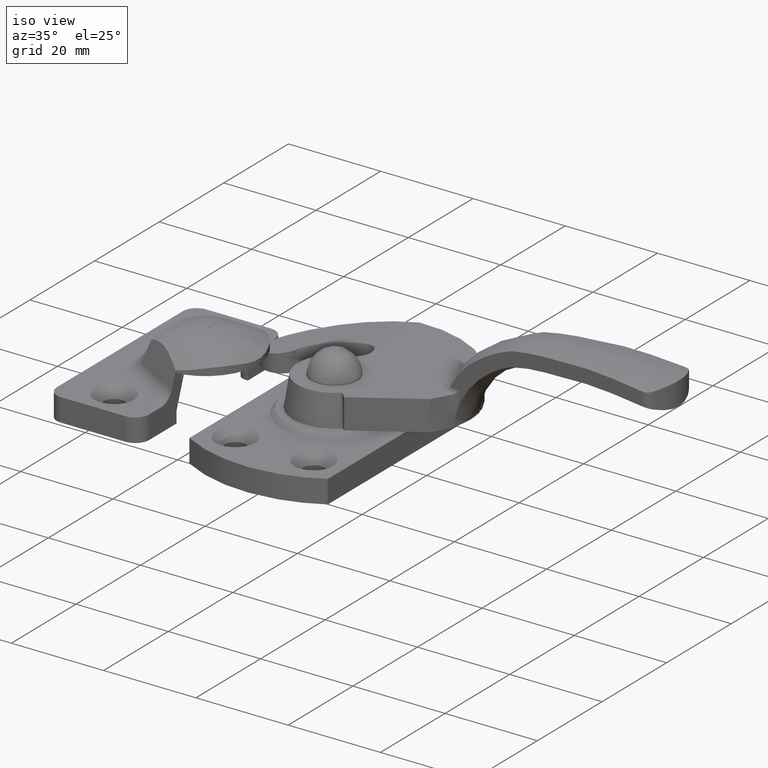
[diagram: clean part render]
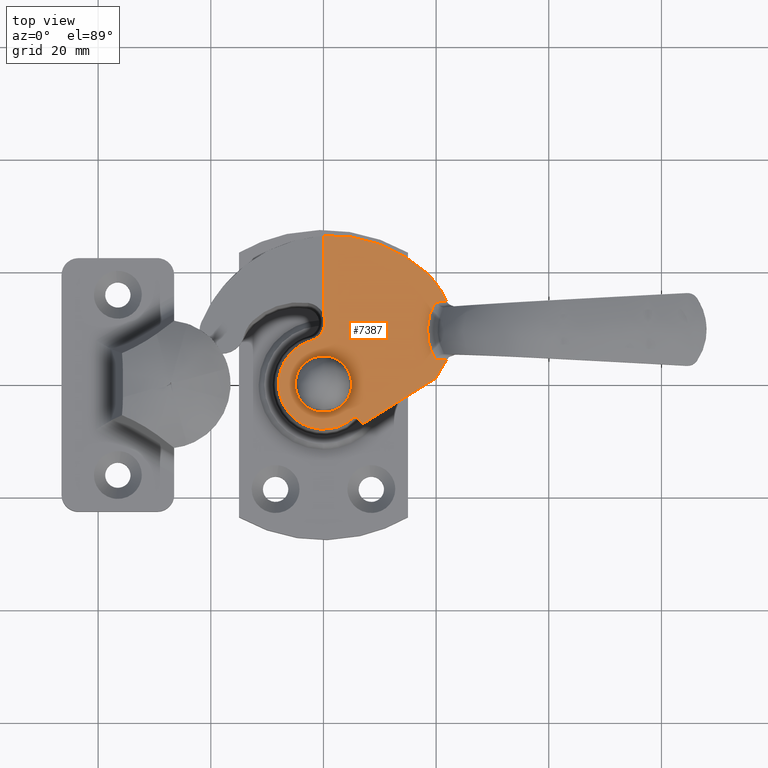
[diagram: tour spotlight — one face highlighted and labeled with its STEP entity id]
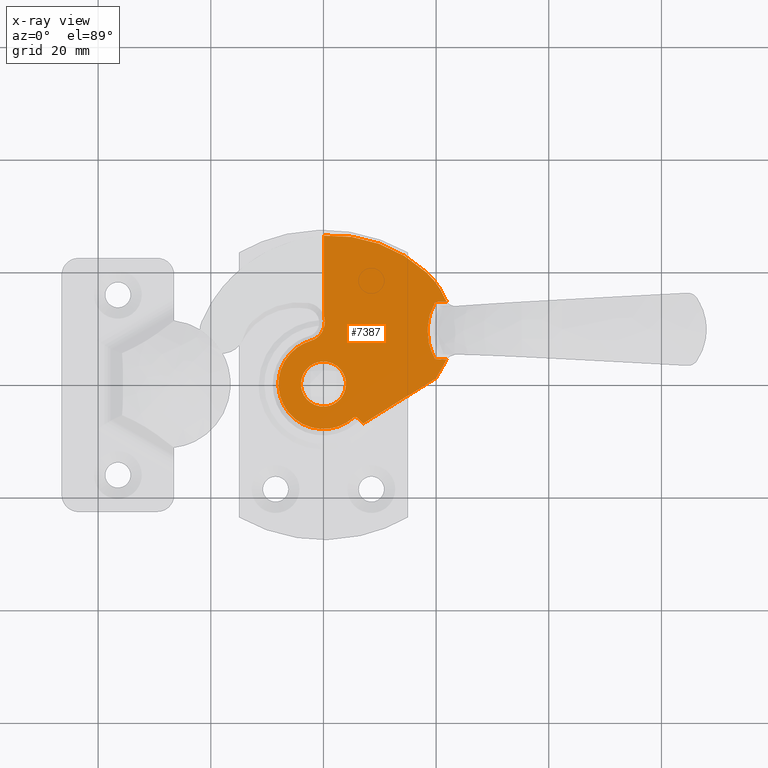
[diagram: x-ray of the same camera — body ghosted, this tour face saturated]
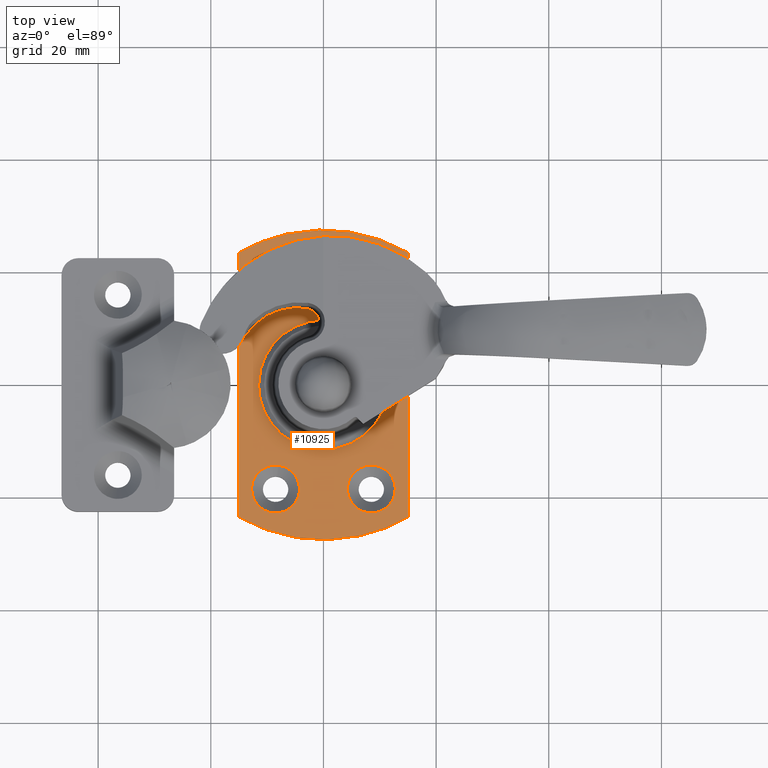
[diagram: tour spotlight — one face highlighted and labeled with its STEP entity id]
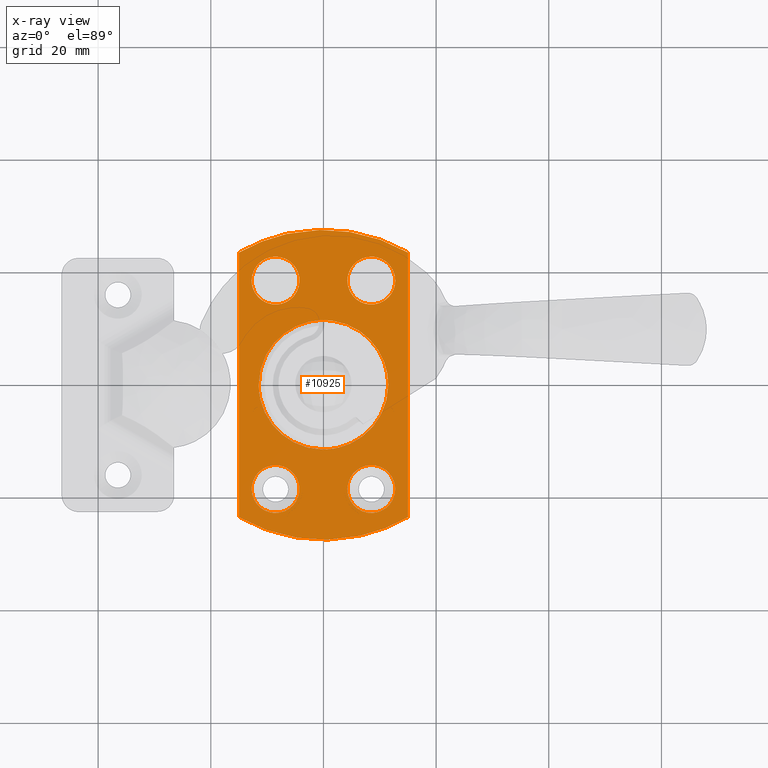
[diagram: x-ray of the same camera — body ghosted, this tour face saturated]
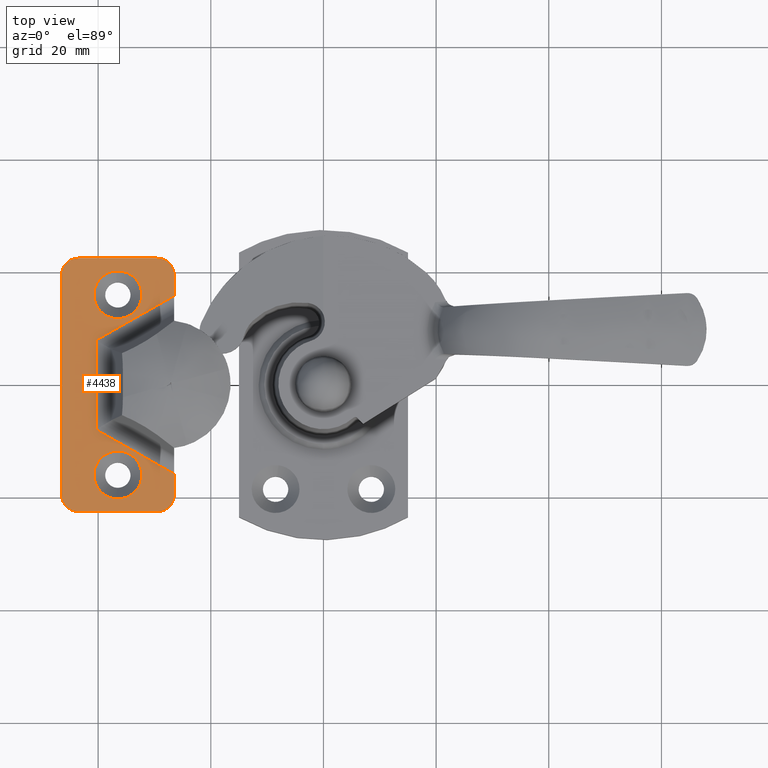
[diagram: tour spotlight — one face highlighted and labeled with its STEP entity id]
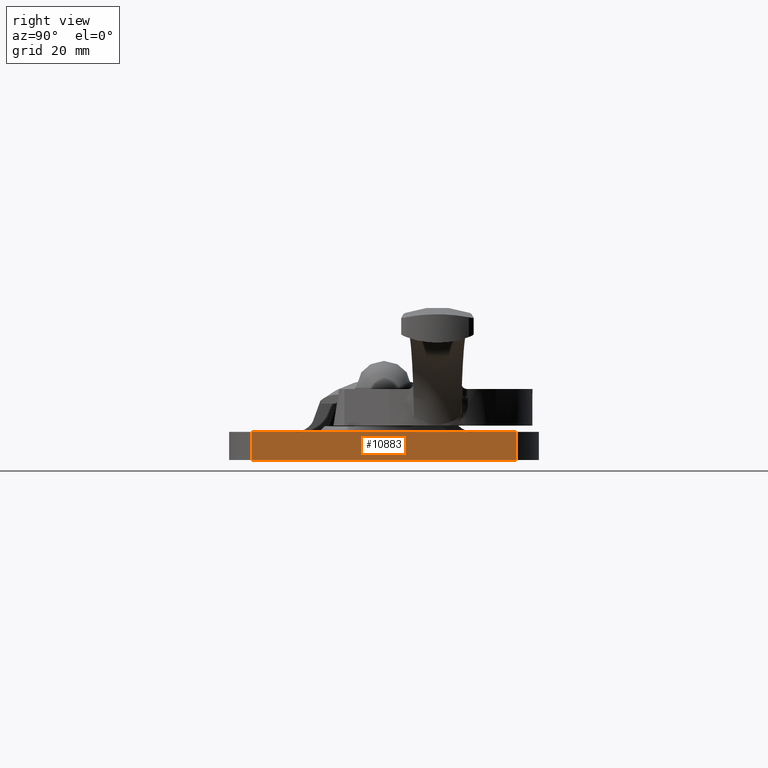
[diagram: tour spotlight — one face highlighted and labeled with its STEP entity id]
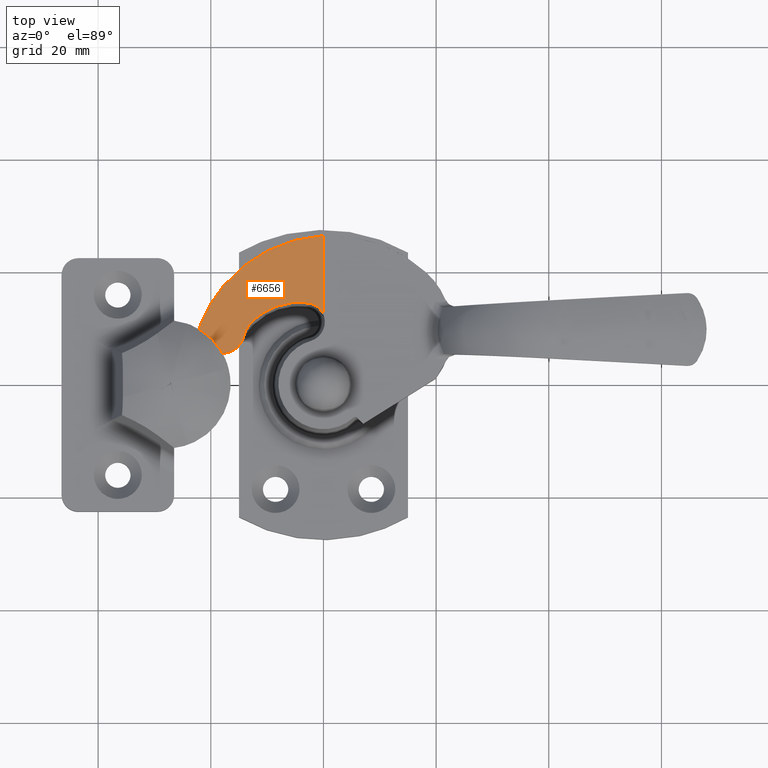
[diagram: tour spotlight — one face highlighted and labeled with its STEP entity id]
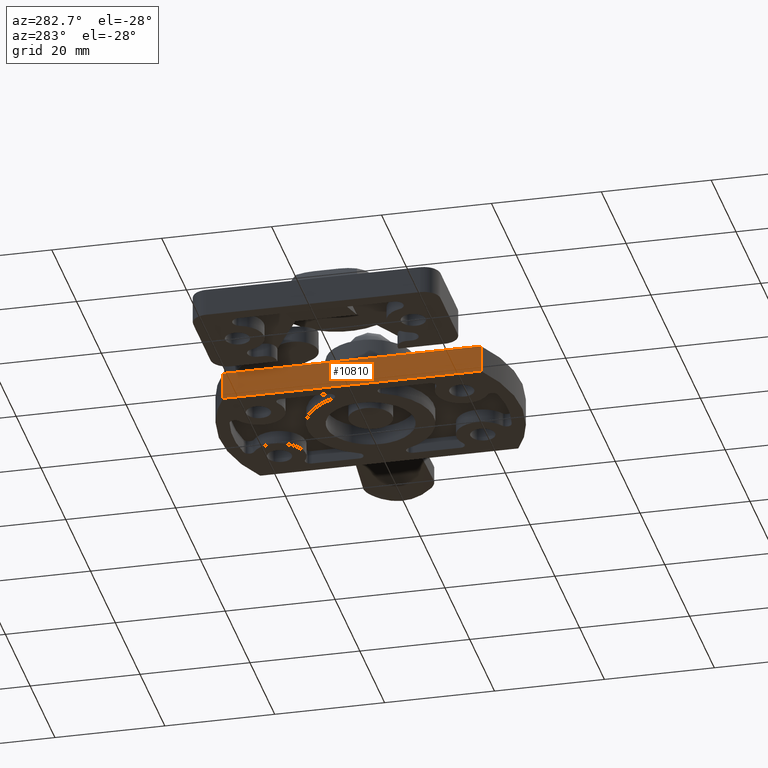
[diagram: tour spotlight — one face highlighted and labeled with its STEP entity id]
A machine part: a face-by-face anatomy tour. The part has 166 B-rep faces; the first image is the clean iso view, then the 6 largest visible faces are spotlighted one at a time (largest first), each with its STEP entity span.

Face 1 — top view, entity #7387. An x-ray twin of the same camera follows (body ghosted, this face saturated) — the face is partly hidden behind the body. In plain terms, the highlighted face is a freeform B-spline surface patch.
Definition (entity closure, byte-faithful):
#4567=CARTESIAN_POINT('',(0.313836382931533,-3.987669334930925,12.600000000000000));
#4568=VERTEX_POINT('',#4567);
#4574=CARTESIAN_POINT('',(4.0,0.0,12.600000000000000));
#4575=VERTEX_POINT('',#4574);
#4576=CARTESIAN_POINT('',(4.0,0.0,12.600000000000000));
#4577=CARTESIAN_POINT('',(4.000000000000000,-3.697561966595338,12.599999999999996));
#4578=CARTESIAN_POINT('',(0.313836382931533,-3.987669334930925,12.599999999999998));
#4586=(BOUNDED_CURVE()B_SPLINE_CURVE(2,(#4576,#4577,#4578),.UNSPECIFIED.,.F.,.U.)B_SPLINE_CURVE_WITH_KNOTS((3,3),(0.0,0.236331300631034),.UNSPECIFIED.)CURVE()GEOMETRIC_REPRESENTATION_ITEM()RATIONAL_B_SPLINE_CURVE((1.0,0.723120658607227,0.969723356168199))REPRESENTATION_ITEM(''));
#4587=EDGE_CURVE('',#4575,#4568,#4586,.T.);
#4589=CARTESIAN_POINT('',(-0.313836382931533,3.987669334930925,12.600000000000000));
#4590=VERTEX_POINT('',#4589);
#4591=CARTESIAN_POINT('',(-0.313836382931533,3.987669334930925,12.599999999999996));
#4592=CARTESIAN_POINT('',(-0.157160428050924,4.000000000000000,12.599999999999998));
#4593=CARTESIAN_POINT('',(0.0,4.0,12.600000000000000));
#4594=CARTESIAN_POINT('',(4.000000000000000,4.000000000000000,12.599999999999996));
#4595=CARTESIAN_POINT('',(4.0,0.0,12.600000000000000));
#4603=(BOUNDED_CURVE()B_SPLINE_CURVE(2,(#4591,#4592,#4593,#4594,#4595),.UNSPECIFIED.,.F.,.U.)B_SPLINE_CURVE_WITH_KNOTS((3,2,3),(0.736331300631034,0.750000000000000,1.0),.UNSPECIFIED.)CURVE()GEOMETRIC_REPRESENTATION_ITEM()RATIONAL_B_SPLINE_CURVE((0.969723356168199,0.983986122579321,1.0,0.707106781186548,1.0))REPRESENTATION_ITEM(''));
#4604=EDGE_CURVE('',#4590,#4575,#4603,.T.);
#4680=CARTESIAN_POINT('',(-4.0,0.0,12.600000000000000));
#4681=VERTEX_POINT('',#4680);
#4682=CARTESIAN_POINT('',(-4.0,0.0,12.600000000000000));
#4683=CARTESIAN_POINT('',(-4.000000000000000,3.697561966595338,12.599999999999996));
#4684=CARTESIAN_POINT('',(-0.313836382931533,3.987669334930925,12.600000000000000));
#4692=(BOUNDED_CURVE()B_SPLINE_CURVE(2,(#4682,#4683,#4684),.UNSPECIFIED.,.F.,.U.)B_SPLINE_CURVE_WITH_KNOTS((3,3),(0.500000000000000,0.736331300631034),.UNSPECIFIED.)CURVE()GEOMETRIC_REPRESENTATION_ITEM()RATIONAL_B_SPLINE_CURVE((1.0,0.723120658607227,0.969723356168199))REPRESENTATION_ITEM(''));
#4693=EDGE_CURVE('',#4681,#4590,#4692,.T.);
#4695=CARTESIAN_POINT('',(0.313836382931533,-3.987669334930925,12.599999999999996));
#4696=CARTESIAN_POINT('',(0.157160428050924,-4.000000000000000,12.599999999999998));
#4697=CARTESIAN_POINT('',(0.0,-4.0,12.600000000000000));
#4698=CARTESIAN_POINT('',(-4.000000000000000,-4.000000000000000,12.599999999999996));
#4699=CARTESIAN_POINT('',(-4.0,0.0,12.600000000000000));
#4707=(BOUNDED_CURVE()B_SPLINE_CURVE(2,(#4695,#4696,#4697,#4698,#4699),.UNSPECIFIED.,.F.,.U.)B_SPLINE_CURVE_WITH_KNOTS((3,2,3),(0.236331300631034,0.250000000000000,0.500000000000000),.UNSPECIFIED.)CURVE()GEOMETRIC_REPRESENTATION_ITEM()RATIONAL_B_SPLINE_CURVE((0.969723356168199,0.983986122579321,1.0,0.707106781186548,1.0))REPRESENTATION_ITEM(''));
#4708=EDGE_CURVE('',#4568,#4681,#4707,.T.);
#4950=CARTESIAN_POINT('',(19.828042910150099,4.433272874120825,12.600000000000000));
#4951=VERTEX_POINT('',#4950);
#4979=CARTESIAN_POINT('',(21.846079899655049,4.325928584541525,12.599999999999820));
#4980=VERTEX_POINT('',#4979);
#4981=CARTESIAN_POINT('',(19.828042910150099,4.433272874120825,12.600000000000000));
#4982=CARTESIAN_POINT('',(21.846079899655049,4.325928584541525,12.599999999999820));
#4983=QUASI_UNIFORM_CURVE('',1,(#4981,#4982),.UNSPECIFIED.,.F.,.U.);
#4984=EDGE_CURVE('',#4951,#4980,#4983,.T.);
#5043=CARTESIAN_POINT('',(21.846079703462149,14.674071250133659,12.600000000000000));
#5044=VERTEX_POINT('',#5043);
#5076=CARTESIAN_POINT('',(19.828042906694652,14.566726963481839,12.600000000000000));
#5077=VERTEX_POINT('',#5076);
#5078=CARTESIAN_POINT('',(21.846079703462149,14.674071250133659,12.600000000000000));
#5079=CARTESIAN_POINT('',(19.828042906694652,14.566726963481839,12.600000000000000));
#5080=QUASI_UNIFORM_CURVE('',1,(#5078,#5079),.UNSPECIFIED.,.F.,.U.);
#5081=EDGE_CURVE('',#5044,#5077,#5080,.T.);
#5308=CARTESIAN_POINT('',(19.828042906694652,14.566726963481839,12.600000000000000));
#5309=CARTESIAN_POINT('',(19.716203264557059,14.374200656655690,12.600000000000000));
#5310=CARTESIAN_POINT('',(19.610880355610242,14.178369574488549,12.599999999999980));
#5311=CARTESIAN_POINT('',(19.462699012321242,13.879651629219760,12.599999999999980));
#5312=CARTESIAN_POINT('',(19.414939929003609,13.779249990449820,12.600000000000000));
#5313=CARTESIAN_POINT('',(19.322707020189750,13.576780688121310,12.600000000000010));
#5314=CARTESIAN_POINT('',(19.278186612173879,13.474594477644169,12.600000000000000));
#5315=CARTESIAN_POINT('',(19.064769285224749,12.961724012628020,12.600000000000000));
#5316=CARTESIAN_POINT('',(18.922866325211920,12.544438070644279,12.600000000000010));
#5317=CARTESIAN_POINT('',(18.694721508925010,11.696372082838010,12.600000000000010));
#5318=CARTESIAN_POINT('',(18.608473776002999,11.265593461710500,12.600000000000000));
#5319=CARTESIAN_POINT('',(18.521395218215361,10.609172289306890,12.600000000000000));
#5320=CARTESIAN_POINT('',(18.499429501783169,10.388494751730210,12.600000000000000));
#5321=CARTESIAN_POINT('',(18.470062085784200,9.944268159296998,12.600000000000000));
#5322=CARTESIAN_POINT('',(18.455431619328142,9.500092216154503,12.599999999999710));
#5323=CARTESIAN_POINT('',(18.470051785087939,9.056016804249540,12.600000000000010));
#5324=CARTESIAN_POINT('',(18.492054531982280,8.722998180427583,12.600000000000010));
#5325=CARTESIAN_POINT('',(18.501234274062249,8.612027191189485,12.599999999999980));
#5326=CARTESIAN_POINT('',(18.523161480679899,8.391272657113641,12.599999999999980));
#5327=CARTESIAN_POINT('',(18.535917363562572,8.281341589639119,12.600000000000000));
#5328=CARTESIAN_POINT('',(18.608549782106010,7.733890264762920,12.600000000000000));
#5329=CARTESIAN_POINT('',(18.694871865961240,7.302953797206722,12.600000000000000));
#5330=CARTESIAN_POINT('',(18.923072147600980,6.454911915096216,12.600000000000000));
#5331=CARTESIAN_POINT('',(19.064957317324890,6.037808236251212,12.600000000000000));
#5332=CARTESIAN_POINT('',(19.278205423618441,5.525364094070457,12.600000000000000));
#5333=CARTESIAN_POINT('',(19.322708454690289,5.423215921370205,12.600000000000000));
#5334=CARTESIAN_POINT('',(19.414941133587330,5.220747293200917,12.600000000000000));
#5335=CARTESIAN_POINT('',(19.462700091431611,5.120345986180106,12.599999999999930));
#5336=CARTESIAN_POINT('',(19.610881027077930,4.821629020330546,12.599999999999930));
#5337=CARTESIAN_POINT('',(19.716203622677440,4.625798570027310,12.600000000000000));
#5338=CARTESIAN_POINT('',(19.828042910150099,4.433272874120825,12.600000000000000));
#5339=B_SPLINE_CURVE_WITH_KNOTS('',3,(#5308,#5309,#5310,#5311,#5312,#5313,#5314,#5315,#5316,#5317,#5318,#5319,#5320,#5321,#5322,#5323,#5324,#5325,#5326,#5327,#5328,#5329,#5330,#5331,#5332,#5333,#5334,#5335,#5336,#5337,#5338),.UNSPECIFIED.,.F.,.U.,(4,2,2,2,2,2,2,1,2,2,2,2,2,2,2,4),(0.0,0.062499999999999,0.093749999999999,0.124999999999998,0.249999999999998,0.374999999999997,0.437499999999997,0.499999999999996,0.562499999999996,0.593749999999997,0.624999999999997,0.749999999999998,0.874999999999999,0.906249999999999,0.937499999999999,1.0),.UNSPECIFIED.);
#5340=EDGE_CURVE('',#5077,#4951,#5339,.T.);
#5406=CARTESIAN_POINT('',(21.682247163966199,4.018421070235840,12.600000000000000));
#5407=VERTEX_POINT('',#5406);
#5408=CARTESIAN_POINT('',(21.846079899655049,4.325928584541529,12.599999999999820));
#5409=CARTESIAN_POINT('',(21.750719403555035,4.179337541171594,12.599999999999826));
#5410=CARTESIAN_POINT('',(21.682247163966199,4.018421070235840,12.600000000000000));
#5418=(BOUNDED_CURVE()B_SPLINE_CURVE(2,(#5408,#5409,#5410),.UNSPECIFIED.,.F.,.U.)CURVE()GEOMETRIC_REPRESENTATION_ITEM()QUASI_UNIFORM_CURVE()RATIONAL_B_SPLINE_CURVE((1.0,0.996198962411696,1.0))REPRESENTATION_ITEM(''));
#5419=EDGE_CURVE('',#4980,#5407,#5418,.T.);
#5783=CARTESIAN_POINT('',(21.682246988731649,14.981578711872601,12.600000000000000));
#5784=VERTEX_POINT('',#5783);
#5785=CARTESIAN_POINT('',(21.682246988731649,14.981578711872601,12.600000000000000));
#5786=CARTESIAN_POINT('',(21.750719222326424,14.820662269301650,12.600000000000003));
#5787=CARTESIAN_POINT('',(21.846079703462131,14.674071250133650,12.600000000000000));
#5795=(BOUNDED_CURVE()B_SPLINE_CURVE(2,(#5785,#5786,#5787),.UNSPECIFIED.,.F.,.U.)CURVE()GEOMETRIC_REPRESENTATION_ITEM()QUASI_UNIFORM_CURVE()RATIONAL_B_SPLINE_CURVE((1.0,0.996198963641266,1.0))REPRESENTATION_ITEM(''));
#5796=EDGE_CURVE('',#5784,#5044,#5795,.T.);
#6532=CARTESIAN_POINT('',(0.079048402841580,26.355083925734800,12.600000000000000));
#6533=VERTEX_POINT('',#6532);
#6550=CARTESIAN_POINT('',(0.079048402841577,12.105208818202041,12.600000000000000));
#6551=VERTEX_POINT('',#6550);
#6559=CARTESIAN_POINT('',(0.079048402841577,12.105208818202041,12.600000000000000));
#6560=CARTESIAN_POINT('',(0.079048402841580,26.355083925734800,12.600000000000000));
#6561=QUASI_UNIFORM_CURVE('',1,(#6559,#6560),.UNSPECIFIED.,.F.,.U.);
#6562=EDGE_CURVE('',#6551,#6533,#6561,.T.);
#6772=CARTESIAN_POINT('',(6.003854804241240,-6.003854804241190,12.600000000000000));
#6773=VERTEX_POINT('',#6772);
#6781=CARTESIAN_POINT('',(5.313746734249810,-5.979712773425181,12.600000000000000));
#6782=VERTEX_POINT('',#6781);
#6783=CARTESIAN_POINT('',(6.003854804241240,-6.003854804241190,12.600000000000000));
#6784=CARTESIAN_POINT('',(5.981238517330546,-5.981238517330494,12.600000000000000));
#6785=CARTESIAN_POINT('',(5.956878559049713,-5.961079724373485,12.600000000000000));
#6786=CARTESIAN_POINT('',(5.904811486818113,-5.925479549642422,12.600000000000000));
#6787=CARTESIAN_POINT('',(5.876847502896389,-5.909931682021863,12.600000000000000));
#6788=CARTESIAN_POINT('',(5.818576567421198,-5.884382402742202,12.600000000000000));
#6789=CARTESIAN_POINT('',(5.788619886510936,-5.874472472527416,12.600000000000000));
#6790=CARTESIAN_POINT('',(5.727092773798684,-5.860281999865920,12.600000000000000));
#6791=CARTESIAN_POINT('',(5.695174887680834,-5.856012948513892,12.600000000000000));
#6792=CARTESIAN_POINT('',(5.631858299638699,-5.853605125131008,12.600000000000000));
#6793=CARTESIAN_POINT('',(5.600381918251039,-5.855373560991123,12.600000000000000));
#6794=CARTESIAN_POINT('',(5.537794383462701,-5.864878047453486,12.600000000000000));
#6795=CARTESIAN_POINT('',(5.506532210091899,-5.872733878945059,12.600000000000000));
#6796=CARTESIAN_POINT('',(5.447012506188435,-5.893911735773111,12.600000000000000));
#6797=CARTESIAN_POINT('',(5.418422718054773,-5.907249644220390,12.600000000000000));
#6798=CARTESIAN_POINT('',(5.363640955802565,-5.939558951142756,12.600000000000000));
#6799=CARTESIAN_POINT('',(5.337663140221006,-5.958459959295173,12.600000000000000));
#6800=CARTESIAN_POINT('',(5.313746734249810,-5.979712773425181,12.600000000000000));
#6801=B_SPLINE_CURVE_WITH_KNOTS('',3,(#6783,#6784,#6785,#6786,#6787,#6788,#6789,#6790,#6791,#6792,#6793,#6794,#6795,#6796,#6797,#6798,#6799,#6800),.UNSPECIFIED.,.F.,.U.,(4,2,2,2,2,2,2,2,4),(0.0,0.125000000000000,0.250000000000000,0.375000000000000,0.500000000000000,0.625000000000000,0.750000000000000,0.875000000000000,1.0),.UNSPECIFIED.);
#6802=EDGE_CURVE('',#6773,#6782,#6801,.T.);
#6985=CARTESIAN_POINT('',(-2.262372028716425,7.672974900451860,12.600000000000000));
#6986=VERTEX_POINT('',#6985);
#6992=CARTESIAN_POINT('',(0.079048402841578,12.105208818202041,12.600000000000000));
#6993=CARTESIAN_POINT('',(0.532195332119201,10.700520099195687,12.599999999999998));
#6994=CARTESIAN_POINT('',(-0.157230563349409,9.395459000444077,12.600000000000000));
#6995=CARTESIAN_POINT('',(-0.846656458818020,8.090397901692464,12.599999999999998));
#6996=CARTESIAN_POINT('',(-2.262372028716425,7.672974900451860,12.600000000000000));
#7004=(BOUNDED_CURVE()B_SPLINE_CURVE(2,(#6992,#6993,#6994,#6995,#6996),.UNSPECIFIED.,.F.,.U.)B_SPLINE_CURVE_WITH_KNOTS((3,2,3),(0.0,0.500000000000000,1.0),.UNSPECIFIED.)CURVE()GEOMETRIC_REPRESENTATION_ITEM()RATIONAL_B_SPLINE_CURVE((1.0,0.921437564414229,1.0,0.921437564414229,1.0))REPRESENTATION_ITEM(''));
#7005=EDGE_CURVE('',#6551,#6986,#7004,.T.);
#7029=CARTESIAN_POINT('',(5.313746734249807,-5.979712773425180,12.600000000000000));
#7030=CARTESIAN_POINT('',(1.250011813990283,-9.590865847089802,12.599999999999998));
#7031=CARTESIAN_POINT('',(-3.603555286836330,-7.141936607330583,12.600000000000000));
#7032=CARTESIAN_POINT('',(-8.457122387662942,-4.693007367571365,12.599999999999998));
#7033=CARTESIAN_POINT('',(-7.966974059554818,0.721244440391297,12.600000000000000));
#7034=CARTESIAN_POINT('',(-7.476825731446691,6.135496248353958,12.599999999999998));
#7035=CARTESIAN_POINT('',(-2.262372028716425,7.672974900451860,12.600000000000000));
#7043=(BOUNDED_CURVE()B_SPLINE_CURVE(2,(#7029,#7030,#7031,#7032,#7033,#7034,#7035),.UNSPECIFIED.,.F.,.U.)B_SPLINE_CURVE_WITH_KNOTS((3,2,2,3),(0.0,0.333333333333333,0.666666666666667,1.0),.UNSPECIFIED.)CURVE()GEOMETRIC_REPRESENTATION_ITEM()RATIONAL_B_SPLINE_CURVE((1.0,0.827085312218304,1.0,0.827085312218304,1.0,0.827085312218304,1.0))REPRESENTATION_ITEM(''));
#7044=EDGE_CURVE('',#6782,#6986,#7043,.T.);
#7058=CARTESIAN_POINT('',(7.036334000000210,-7.036334000000000,12.600000000000000));
#7059=VERTEX_POINT('',#7058);
#7065=CARTESIAN_POINT('',(7.036334000000210,-7.036334000000000,12.600000000000000));
#7066=CARTESIAN_POINT('',(6.003854804241240,-6.003854804241190,12.600000000000000));
#7067=QUASI_UNIFORM_CURVE('',1,(#7065,#7066),.UNSPECIFIED.,.F.,.U.);
#7068=EDGE_CURVE('',#7059,#6773,#7067,.T.);
#7079=CARTESIAN_POINT('',(19.948954665584850,1.032366926659030,12.600000000000000));
#7080=VERTEX_POINT('',#7079);
#7081=CARTESIAN_POINT('',(19.948954665584850,1.032366926659030,12.600000000000000));
#7082=CARTESIAN_POINT('',(7.036334000000210,-7.036334000000000,12.600000000000000));
#7083=QUASI_UNIFORM_CURVE('',1,(#7081,#7082),.UNSPECIFIED.,.F.,.U.);
#7084=EDGE_CURVE('',#7080,#7059,#7083,.T.);
#7286=CARTESIAN_POINT('',(18.256174143053201,19.823795684708450,12.600000000000000));
#7287=VERTEX_POINT('',#7286);
#7288=CARTESIAN_POINT('',(0.079048402841579,26.355083925734821,12.600000000000000));
#7289=CARTESIAN_POINT('',(10.535291057541123,26.895807936510717,12.599999999999994));
#7290=CARTESIAN_POINT('',(18.256174143053180,19.823795684708429,12.600000000000000));
#7298=(BOUNDED_CURVE()B_SPLINE_CURVE(2,(#7288,#7289,#7290),.UNSPECIFIED.,.F.,.U.)CURVE()GEOMETRIC_REPRESENTATION_ITEM()QUASI_UNIFORM_CURVE()RATIONAL_B_SPLINE_CURVE((1.0,0.922373974857740,1.0))REPRESENTATION_ITEM(''));
#7299=EDGE_CURVE('',#6533,#7287,#7298,.T.);
#7327=CARTESIAN_POINT('',(21.682247163966188,4.018421070235850,12.600000000000000));
#7328=CARTESIAN_POINT('',(21.001120551272447,2.417706803647479,12.600000000000001));
#7329=CARTESIAN_POINT('',(19.948954665584861,1.032366926659022,12.600000000000000));
#7337=(BOUNDED_CURVE()B_SPLINE_CURVE(2,(#7327,#7328,#7329),.UNSPECIFIED.,.F.,.U.)CURVE()GEOMETRIC_REPRESENTATION_ITEM()QUASI_UNIFORM_CURVE()RATIONAL_B_SPLINE_CURVE((1.0,0.992368312910890,1.0))REPRESENTATION_ITEM(''));
#7338=EDGE_CURVE('',#5407,#7080,#7337,.T.);
#7348=CARTESIAN_POINT('',(23.336701303873589,-9.716795383026970,12.600000000000000));
#7349=CARTESIAN_POINT('',(-9.486790317248673,-9.716795383026970,12.600000000000000));
#7350=CARTESIAN_POINT('',(23.336701303873589,28.106085570341271,12.600000000000000));
#7351=CARTESIAN_POINT('',(-9.486790317248673,28.106085570341271,12.600000000000000));
#7352=B_SPLINE_SURFACE_WITH_KNOTS('',1,1,((#7348,#7350),(#7349,#7351)),.UNSPECIFIED.,.F.,.F.,.U.,(2,2),(2,2),(0.0,32.823491621122272),(0.0,37.822880953368241),.UNSPECIFIED.);
#7353=ORIENTED_EDGE('',*,*,#5796,.F.);
#7354=CARTESIAN_POINT('',(18.256174143053190,19.823795684708450,12.600000000000000));
#7355=CARTESIAN_POINT('',(20.494025322135798,17.774015785064645,12.599999999999998));
#7356=CARTESIAN_POINT('',(21.682246988731642,14.981578711872601,12.600000000000000));
#7364=(BOUNDED_CURVE()B_SPLINE_CURVE(2,(#7354,#7355,#7356),.UNSPECIFIED.,.F.,.U.)CURVE()GEOMETRIC_REPRESENTATION_ITEM()QUASI_UNIFORM_CURVE()RATIONAL_B_SPLINE_CURVE((1.0,0.977302982016075,1.0))REPRESENTATION_ITEM(''));
#7365=EDGE_CURVE('',#7287,#5784,#7364,.T.);
#7366=ORIENTED_EDGE('',*,*,#7365,.F.);
#7367=ORIENTED_EDGE('',*,*,#7299,.F.);
#7368=ORIENTED_EDGE('',*,*,#6562,.F.);
#7369=ORIENTED_EDGE('',*,*,#7005,.T.);
#7370=ORIENTED_EDGE('',*,*,#7044,.F.);
#7371=ORIENTED_EDGE('',*,*,#6802,.F.);
#7372=ORIENTED_EDGE('',*,*,#7068,.F.);
#7373=ORIENTED_EDGE('',*,*,#7084,.F.);
#7374=ORIENTED_EDGE('',*,*,#7338,.F.);
#7375=ORIENTED_EDGE('',*,*,#5419,.F.);
#7376=ORIENTED_EDGE('',*,*,#4984,.F.);
#7377=ORIENTED_EDGE('',*,*,#5340,.F.);
#7378=ORIENTED_EDGE('',*,*,#5081,.F.);
#7379=EDGE_LOOP('',(#7353,#7366,#7367,#7368,#7369,#7370,#7371,#7372,#7373,#7374,#7375,#7376,#7377,#7378));
#7380=FACE_OUTER_BOUND('',#7379,.T.);
#7381=ORIENTED_EDGE('',*,*,#4693,.T.);
#7382=ORIENTED_EDGE('',*,*,#4604,.T.);
#7383=ORIENTED_EDGE('',*,*,#4587,.T.);
#7384=ORIENTED_EDGE('',*,*,#4708,.T.);
#7385=EDGE_LOOP('',(#7381,#7382,#7383,#7384));
#7386=FACE_BOUND('',#7385,.T.);
#7387=ADVANCED_FACE('',(#7380,#7386),#7352,.F.);

Face 2 — top view, entity #10925. An x-ray twin of the same camera follows (body ghosted, this face saturated) — the face is partly hidden behind the body. In plain terms, the highlighted face is a freeform B-spline surface patch.
Definition (entity closure, byte-faithful):
#7691=CARTESIAN_POINT('',(7.998354501797895,14.279709512947100,5.000000000114781));
#7692=VERTEX_POINT('',#7691);
#7698=CARTESIAN_POINT('',(12.750000000000000,18.500000000000000,5.0));
#7699=VERTEX_POINT('',#7698);
#7700=CARTESIAN_POINT('',(7.998354501797895,14.279709512947104,5.000000000114781));
#7701=CARTESIAN_POINT('',(8.248297490572561,14.249999999999996,5.0));
#7702=CARTESIAN_POINT('',(8.500000000000000,14.250000000000000,5.0));
#7703=CARTESIAN_POINT('',(12.750000000000002,14.249999999999996,5.000000000000001));
#7704=CARTESIAN_POINT('',(12.750000000000000,18.500000000000000,5.0));
#7712=(BOUNDED_CURVE()B_SPLINE_CURVE(2,(#7700,#7701,#7702,#7703,#7704),.UNSPECIFIED.,.F.,.U.)B_SPLINE_CURVE_WITH_KNOTS((3,2,3),(0.229562473443776,0.250000000000000,0.500000000000000),.UNSPECIFIED.)CURVE()GEOMETRIC_REPRESENTATION_ITEM()RATIONAL_B_SPLINE_CURVE((0.956026754047021,0.976055948249449,1.0,0.707106781186548,1.0))REPRESENTATION_ITEM(''));
#7713=EDGE_CURVE('',#7692,#7699,#7712,.T.);
#7715=CARTESIAN_POINT('',(8.759456293867000,22.742072893352169,5.000000000110646));
#7716=VERTEX_POINT('',#7715);
#7717=CARTESIAN_POINT('',(12.750000000000000,18.500000000000000,5.0));
#7718=CARTESIAN_POINT('',(12.750000000000000,22.498000782768393,5.000000000000001));
#7719=CARTESIAN_POINT('',(8.759456293867002,22.742072893352169,5.000000000110646));
#7727=(BOUNDED_CURVE()B_SPLINE_CURVE(2,(#7717,#7718,#7719),.UNSPECIFIED.,.F.,.U.)B_SPLINE_CURVE_WITH_KNOTS((3,3),(0.500000000000000,0.739332962173870),.UNSPECIFIED.)CURVE()GEOMETRIC_REPRESENTATION_ITEM()RATIONAL_B_SPLINE_CURVE((1.0,0.719603993362947,0.976072041527255))REPRESENTATION_ITEM(''));
#7728=EDGE_CURVE('',#7699,#7716,#7727,.T.);
#7762=CARTESIAN_POINT('',(4.250000000000000,18.500000000000000,5.0));
#7763=VERTEX_POINT('',#7762);
#7764=CARTESIAN_POINT('',(8.759456293867000,22.742072893352173,5.000000000110646));
#7765=CARTESIAN_POINT('',(8.629849244858455,22.750000000000004,5.0));
#7766=CARTESIAN_POINT('',(8.500000000000000,22.750000000000000,5.0));
#7767=CARTESIAN_POINT('',(4.249999999999999,22.750000000000007,5.000000000000001));
#7768=CARTESIAN_POINT('',(4.250000000000000,18.500000000000000,5.0));
#7776=(BOUNDED_CURVE()B_SPLINE_CURVE(2,(#7764,#7765,#7766,#7767,#7768),.UNSPECIFIED.,.F.,.U.)B_SPLINE_CURVE_WITH_KNOTS((3,2,3),(0.739332962173870,0.750000000000000,1.0),.UNSPECIFIED.)CURVE()GEOMETRIC_REPRESENTATION_ITEM()RATIONAL_B_SPLINE_CURVE((0.976072041527253,0.987502787823599,1.0,0.707106781186548,1.0))REPRESENTATION_ITEM(''));
#7777=EDGE_CURVE('',#7716,#7763,#7776,.T.);
#7779=CARTESIAN_POINT('',(4.250000000000000,18.500000000000000,5.0));
#7780=CARTESIAN_POINT('',(4.249999999999999,14.725258266323177,4.999999999999999));
#7781=CARTESIAN_POINT('',(7.998354501797895,14.279709512947102,5.000000000114782));
#7789=(BOUNDED_CURVE()B_SPLINE_CURVE(2,(#7779,#7780,#7781),.UNSPECIFIED.,.F.,.U.)B_SPLINE_CURVE_WITH_KNOTS((3,3),(0.0,0.229562473443776),.UNSPECIFIED.)CURVE()GEOMETRIC_REPRESENTATION_ITEM()RATIONAL_B_SPLINE_CURVE((1.0,0.731050832937099,0.956026754047021))REPRESENTATION_ITEM(''));
#7790=EDGE_CURVE('',#7763,#7692,#7789,.T.);
#8016=CARTESIAN_POINT('',(-8.166548842498468,14.263101331600589,5.000000000085154));
#8017=VERTEX_POINT('',#8016);
#8023=CARTESIAN_POINT('',(-4.250000000000000,18.500000000000000,5.0));
#8024=VERTEX_POINT('',#8023);
#8025=CARTESIAN_POINT('',(-4.250000000000000,18.500000000000000,5.0));
#8026=CARTESIAN_POINT('',(-4.250000000000001,14.571340411664579,5.0));
#8027=CARTESIAN_POINT('',(-8.166548842498468,14.263101331600586,5.000000000085154));
#8035=(BOUNDED_CURVE()B_SPLINE_CURVE(2,(#8025,#8026,#8027),.UNSPECIFIED.,.F.,.U.)B_SPLINE_CURVE_WITH_KNOTS((3,3),(0.0,0.236331300580047),.UNSPECIFIED.)CURVE()GEOMETRIC_REPRESENTATION_ITEM()RATIONAL_B_SPLINE_CURVE((1.0,0.723120658666962,0.969723356061793))REPRESENTATION_ITEM(''));
#8036=EDGE_CURVE('',#8024,#8017,#8035,.T.);
#8038=CARTESIAN_POINT('',(-8.833451157501532,22.736898668399409,5.000000000085153));
#8039=VERTEX_POINT('',#8038);
#8040=CARTESIAN_POINT('',(-8.833451157501532,22.736898668399405,5.000000000085154));
#8041=CARTESIAN_POINT('',(-8.666982955437129,22.750000000000000,5.0));
#8042=CARTESIAN_POINT('',(-8.500000000000000,22.750000000000000,5.0));
#8043=CARTESIAN_POINT('',(-4.249999999999999,22.750000000000007,5.000000000000001));
#8044=CARTESIAN_POINT('',(-4.250000000000000,18.500000000000000,5.0));
#8052=(BOUNDED_CURVE()B_SPLINE_CURVE(2,(#8040,#8041,#8042,#8043,#8044),.UNSPECIFIED.,.F.,.U.)B_SPLINE_CURVE_WITH_KNOTS((3,2,3),(0.736331300580047,0.750000000000000,1.0),.UNSPECIFIED.)CURVE()GEOMETRIC_REPRESENTATION_ITEM()RATIONAL_B_SPLINE_CURVE((0.969723356061793,0.983986122519586,1.0,0.707106781186548,1.0))REPRESENTATION_ITEM(''));
#8053=EDGE_CURVE('',#8039,#8024,#8052,.T.);
#8090=CARTESIAN_POINT('',(-12.750000000000000,18.500000000000000,5.0));
#8091=VERTEX_POINT('',#8090);
#8092=CARTESIAN_POINT('',(-12.750000000000000,18.500000000000000,5.0));
#8093=CARTESIAN_POINT('',(-12.750000000000002,22.428659588335410,5.000000000000001));
#8094=CARTESIAN_POINT('',(-8.833451157501532,22.736898668399409,5.000000000085154));
#8102=(BOUNDED_CURVE()B_SPLINE_CURVE(2,(#8092,#8093,#8094),.UNSPECIFIED.,.F.,.U.)B_SPLINE_CURVE_WITH_KNOTS((3,3),(0.500000000000000,0.736331300580046),.UNSPECIFIED.)CURVE()GEOMETRIC_REPRESENTATION_ITEM()RATIONAL_B_SPLINE_CURVE((1.0,0.723120658666963,0.969723356061791))REPRESENTATION_ITEM(''));
#8103=EDGE_CURVE('',#8091,#8039,#8102,.T.);
#8105=CARTESIAN_POINT('',(-8.166548842498468,14.263101331600589,5.000000000085154));
#8106=CARTESIAN_POINT('',(-8.333017044562871,14.249999999999996,5.0));
#8107=CARTESIAN_POINT('',(-8.500000000000000,14.250000000000000,5.0));
#8108=CARTESIAN_POINT('',(-12.750000000000002,14.249999999999996,5.000000000000001));
#8109=CARTESIAN_POINT('',(-12.750000000000000,18.500000000000000,5.0));
#8117=(BOUNDED_CURVE()B_SPLINE_CURVE(2,(#8105,#8106,#8107,#8108,#8109),.UNSPECIFIED.,.F.,.U.)B_SPLINE_CURVE_WITH_KNOTS((3,2,3),(0.236331300580047,0.250000000000000,0.500000000000000),.UNSPECIFIED.)CURVE()GEOMETRIC_REPRESENTATION_ITEM()RATIONAL_B_SPLINE_CURVE((0.969723356061793,0.983986122519586,1.0,0.707106781186548,1.0))REPRESENTATION_ITEM(''));
#8118=EDGE_CURVE('',#8017,#8091,#8117,.T.);
#8344=CARTESIAN_POINT('',(8.166548842498468,-14.263101331600589,5.000000000085154));
#8345=VERTEX_POINT('',#8344);
#8351=CARTESIAN_POINT('',(4.250000000000000,-18.500000000000000,5.0));
#8352=VERTEX_POINT('',#8351);
#8353=CARTESIAN_POINT('',(4.250000000000000,-18.500000000000000,5.0));
#8354=CARTESIAN_POINT('',(4.250000000000001,-14.571340411664579,5.0));
#8355=CARTESIAN_POINT('',(8.166548842498468,-14.263101331600586,5.000000000085154));
#8363=(BOUNDED_CURVE()B_SPLINE_CURVE(2,(#8353,#8354,#8355),.UNSPECIFIED.,.F.,.U.)B_SPLINE_CURVE_WITH_KNOTS((3,3),(0.0,0.236331300580047),.UNSPECIFIED.)CURVE()GEOMETRIC_REPRESENTATION_ITEM()RATIONAL_B_SPLINE_CURVE((1.0,0.723120658666962,0.969723356061793))REPRESENTATION_ITEM(''));
#8364=EDGE_CURVE('',#8352,#8345,#8363,.T.);
#8366=CARTESIAN_POINT('',(8.833451157501532,-22.736898668399409,5.000000000085153));
#8367=VERTEX_POINT('',#8366);
#8368=CARTESIAN_POINT('',(8.833451157501532,-22.736898668399405,5.000000000085154));
#8369=CARTESIAN_POINT('',(8.666982955437129,-22.750000000000000,5.0));
#8370=CARTESIAN_POINT('',(8.500000000000000,-22.750000000000000,5.0));
#8371=CARTESIAN_POINT('',(4.249999999999999,-22.750000000000007,5.000000000000001));
#8372=CARTESIAN_POINT('',(4.250000000000000,-18.500000000000000,5.0));
#8380=(BOUNDED_CURVE()B_SPLINE_CURVE(2,(#8368,#8369,#8370,#8371,#8372),.UNSPECIFIED.,.F.,.U.)B_SPLINE_CURVE_WITH_KNOTS((3,2,3),(0.736331300580047,0.750000000000000,1.0),.UNSPECIFIED.)CURVE()GEOMETRIC_REPRESENTATION_ITEM()RATIONAL_B_SPLINE_CURVE((0.969723356061793,0.983986122519586,1.0,0.707106781186548,1.0))REPRESENTATION_ITEM(''));
#8381=EDGE_CURVE('',#8367,#8352,#8380,.T.);
#8418=CARTESIAN_POINT('',(12.750000000000000,-18.500000000000000,5.0));
#8419=VERTEX_POINT('',#8418);
#8420=CARTESIAN_POINT('',(12.750000000000000,-18.500000000000000,5.0));
#8421=CARTESIAN_POINT('',(12.750000000000002,-22.428659588335410,5.000000000000001));
#8422=CARTESIAN_POINT('',(8.833451157501532,-22.736898668399409,5.000000000085154));
#8430=(BOUNDED_CURVE()B_SPLINE_CURVE(2,(#8420,#8421,#8422),.UNSPECIFIED.,.F.,.U.)B_SPLINE_CURVE_WITH_KNOTS((3,3),(0.500000000000000,0.736331300580046),.UNSPECIFIED.)CURVE()GEOMETRIC_REPRESENTATION_ITEM()RATIONAL_B_SPLINE_CURVE((1.0,0.723120658666963,0.969723356061791))REPRESENTATION_ITEM(''));
#8431=EDGE_CURVE('',#8419,#8367,#8430,.T.);
#8433=CARTESIAN_POINT('',(8.166548842498468,-14.263101331600589,5.000000000085154));
#8434=CARTESIAN_POINT('',(8.333017044562871,-14.249999999999996,5.0));
#8435=CARTESIAN_POINT('',(8.500000000000000,-14.250000000000000,5.0));
#8436=CARTESIAN_POINT('',(12.750000000000002,-14.249999999999996,5.000000000000001));
#8437=CARTESIAN_POINT('',(12.750000000000000,-18.500000000000000,5.0));
#8445=(BOUNDED_CURVE()B_SPLINE_CURVE(2,(#8433,#8434,#8435,#8436,#8437),.UNSPECIFIED.,.F.,.U.)B_SPLINE_CURVE_WITH_KNOTS((3,2,3),(0.236331300580047,0.250000000000000,0.500000000000000),.UNSPECIFIED.)CURVE()GEOMETRIC_REPRESENTATION_ITEM()RATIONAL_B_SPLINE_CURVE((0.969723356061793,0.983986122519586,1.0,0.707106781186548,1.0))REPRESENTATION_ITEM(''));
#8446=EDGE_CURVE('',#8345,#8419,#8445,.T.);
#8691=CARTESIAN_POINT('',(-7.998354501797895,-14.279709512947100,5.000000000114781));
#8692=VERTEX_POINT('',#8691);
#8698=CARTESIAN_POINT('',(-12.750000000000000,-18.500000000000000,5.0));
#8699=VERTEX_POINT('',#8698);
#8700=CARTESIAN_POINT('',(-7.998354501797895,-14.279709512947104,5.000000000114781));
#8701=CARTESIAN_POINT('',(-8.248297490572561,-14.249999999999996,5.0));
#8702=CARTESIAN_POINT('',(-8.500000000000000,-14.250000000000000,5.0));
#8703=CARTESIAN_POINT('',(-12.750000000000002,-14.249999999999996,5.000000000000001));
#8704=CARTESIAN_POINT('',(-12.750000000000000,-18.500000000000000,5.0));
#8712=(BOUNDED_CURVE()B_SPLINE_CURVE(2,(#8700,#8701,#8702,#8703,#8704),.UNSPECIFIED.,.F.,.U.)B_SPLINE_CURVE_WITH_KNOTS((3,2,3),(0.229562473443776,0.250000000000000,0.500000000000000),.UNSPECIFIED.)CURVE()GEOMETRIC_REPRESENTATION_ITEM()RATIONAL_B_SPLINE_CURVE((0.956026754047021,0.976055948249449,1.0,0.707106781186548,1.0))REPRESENTATION_ITEM(''));
#8713=EDGE_CURVE('',#8692,#8699,#8712,.T.);
#8715=CARTESIAN_POINT('',(-8.759456293867000,-22.742072893352169,5.000000000110646));
#8716=VERTEX_POINT('',#8715);
#8717=CARTESIAN_POINT('',(-12.750000000000000,-18.500000000000000,5.0));
#8718=CARTESIAN_POINT('',(-12.750000000000000,-22.498000782768393,5.000000000000001));
#8719=CARTESIAN_POINT('',(-8.759456293867002,-22.742072893352169,5.000000000110646));
#8727=(BOUNDED_CURVE()B_SPLINE_CURVE(2,(#8717,#8718,#8719),.UNSPECIFIED.,.F.,.U.)B_SPLINE_CURVE_WITH_KNOTS((3,3),(0.500000000000000,0.739332962173870),.UNSPECIFIED.)CURVE()GEOMETRIC_REPRESENTATION_ITEM()RATIONAL_B_SPLINE_CURVE((1.0,0.719603993362947,0.976072041527255))REPRESENTATION_ITEM(''));
#8728=EDGE_CURVE('',#8699,#8716,#8727,.T.);
#8762=CARTESIAN_POINT('',(-4.250000000000000,-18.500000000000000,5.0));
#8763=VERTEX_POINT('',#8762);
#8764=CARTESIAN_POINT('',(-8.759456293867000,-22.742072893352173,5.000000000110646));
#8765=CARTESIAN_POINT('',(-8.629849244858455,-22.750000000000004,5.0));
#8766=CARTESIAN_POINT('',(-8.500000000000000,-22.750000000000000,5.0));
#8767=CARTESIAN_POINT('',(-4.249999999999999,-22.750000000000007,5.000000000000001));
#8768=CARTESIAN_POINT('',(-4.250000000000000,-18.500000000000000,5.0));
#8776=(BOUNDED_CURVE()B_SPLINE_CURVE(2,(#8764,#8765,#8766,#8767,#8768),.UNSPECIFIED.,.F.,.U.)B_SPLINE_CURVE_WITH_KNOTS((3,2,3),(0.739332962173870,0.750000000000000,1.0),.UNSPECIFIED.)CURVE()GEOMETRIC_REPRESENTATION_ITEM()RATIONAL_B_SPLINE_CURVE((0.976072041527253,0.987502787823599,1.0,0.707106781186548,1.0))REPRESENTATION_ITEM(''));
#8777=EDGE_CURVE('',#8716,#8763,#8776,.T.);
#8779=CARTESIAN_POINT('',(-4.250000000000000,-18.500000000000000,5.0));
#8780=CARTESIAN_POINT('',(-4.249999999999999,-14.725258266323177,4.999999999999999));
#8781=CARTESIAN_POINT('',(-7.998354501797895,-14.279709512947102,5.000000000114782));
#8789=(BOUNDED_CURVE()B_SPLINE_CURVE(2,(#8779,#8780,#8781),.UNSPECIFIED.,.F.,.U.)B_SPLINE_CURVE_WITH_KNOTS((3,3),(0.0,0.229562473443776),.UNSPECIFIED.)CURVE()GEOMETRIC_REPRESENTATION_ITEM()RATIONAL_B_SPLINE_CURVE((1.0,0.731050832937099,0.956026754047021))REPRESENTATION_ITEM(''));
#8790=EDGE_CURVE('',#8763,#8692,#8789,.T.);
#9212=CARTESIAN_POINT('',(-0.100355158479362,-11.499562115269660,4.999999999966146));
#9213=VERTEX_POINT('',#9212);
#9219=CARTESIAN_POINT('',(11.500000000000000,0.0,5.0));
#9220=VERTEX_POINT('',#9219);
#9221=CARTESIAN_POINT('',(11.500000000000000,0.0,5.0));
#9222=CARTESIAN_POINT('',(11.500000000000000,-11.500000000000000,5.000000000000001));
#9223=CARTESIAN_POINT('',(0.0,-11.500000000000000,5.0));
#9224=CARTESIAN_POINT('',(-0.050178534685882,-11.499999999999998,5.0));
#9225=CARTESIAN_POINT('',(-0.100355158479362,-11.499562115269663,4.999999999966146));
#9233=(BOUNDED_CURVE()B_SPLINE_CURVE(2,(#9221,#9222,#9223,#9224,#9225),.UNSPECIFIED.,.F.,.U.)B_SPLINE_CURVE_WITH_KNOTS((3,2,3),(0.500000000000000,0.750000000000000,0.751539894342578),.UNSPECIFIED.)CURVE()GEOMETRIC_REPRESENTATION_ITEM()RATIONAL_B_SPLINE_CURVE((1.0,0.707106781186548,1.0,0.998195901557478,0.996414028082838))REPRESENTATION_ITEM(''));
#9234=EDGE_CURVE('',#9220,#9213,#9233,.T.);
#9236=CARTESIAN_POINT('',(1.427472024273568,11.411061458994389,4.999999999955179));
#9237=VERTEX_POINT('',#9236);
#9238=CARTESIAN_POINT('',(1.427472024273568,11.411061458994391,4.999999999955179));
#9239=CARTESIAN_POINT('',(11.499999999999998,10.151033901100130,4.999999999999998));
#9240=CARTESIAN_POINT('',(11.500000000000000,0.0,5.0));
#9248=(BOUNDED_CURVE()B_SPLINE_CURVE(2,(#9238,#9239,#9240),.UNSPECIFIED.,.F.,.U.)B_SPLINE_CURVE_WITH_KNOTS((3,3),(0.271473928981046,0.500000000000000),.UNSPECIFIED.)CURVE()GEOMETRIC_REPRESENTATION_ITEM()RATIONAL_B_SPLINE_CURVE((0.954005430254644,0.732265053905867,1.0))REPRESENTATION_ITEM(''));
#9249=EDGE_CURVE('',#9237,#9220,#9248,.T.);
#9299=CARTESIAN_POINT('',(-11.500000000000000,0.0,5.0));
#9300=VERTEX_POINT('',#9299);
#9301=CARTESIAN_POINT('',(-11.500000000000000,0.0,5.0));
#9302=CARTESIAN_POINT('',(-11.500000000000000,11.500000000000000,5.000000000000001));
#9303=CARTESIAN_POINT('',(0.0,11.500000000000000,5.0));
#9304=CARTESIAN_POINT('',(0.716506666989249,11.499999999999998,5.000000000000001));
#9305=CARTESIAN_POINT('',(1.427472024273568,11.411061458994391,4.999999999955179));
#9313=(BOUNDED_CURVE()B_SPLINE_CURVE(2,(#9301,#9302,#9303,#9304,#9305),.UNSPECIFIED.,.F.,.U.)B_SPLINE_CURVE_WITH_KNOTS((3,2,3),(0.0,0.250000000000000,0.271473928981046),.UNSPECIFIED.)CURVE()GEOMETRIC_REPRESENTATION_ITEM()RATIONAL_B_SPLINE_CURVE((1.0,0.707106781186548,1.0,0.974841727280680,0.954005430254644))REPRESENTATION_ITEM(''));
#9314=EDGE_CURVE('',#9300,#9237,#9313,.T.);
#9316=CARTESIAN_POINT('',(-0.100355158479362,-11.499562115269658,4.999999999966146));
#9317=CARTESIAN_POINT('',(-11.500000000000000,-11.400078921350982,4.999999999999999));
#9318=CARTESIAN_POINT('',(-11.500000000000000,0.0,5.0));
#9326=(BOUNDED_CURVE()B_SPLINE_CURVE(2,(#9316,#9317,#9318),.UNSPECIFIED.,.F.,.U.)B_SPLINE_CURVE_WITH_KNOTS((3,3),(0.751539894342577,1.0),.UNSPECIFIED.)CURVE()GEOMETRIC_REPRESENTATION_ITEM()RATIONAL_B_SPLINE_CURVE((0.996414028082840,0.708910879629068,1.0))REPRESENTATION_ITEM(''));
#9327=EDGE_CURVE('',#9213,#9300,#9326,.T.);
#10753=CARTESIAN_POINT('',(-15.0,23.480761999999999,5.0));
#10754=VERTEX_POINT('',#10753);
#10760=CARTESIAN_POINT('',(15.0,23.480762113533149,5.0));
#10761=VERTEX_POINT('',#10760);
#10762=CARTESIAN_POINT('',(15.000000000000011,23.480762113533149,5.0));
#10763=CARTESIAN_POINT('',(-0.000000032774182,32.141016170299736,5.000000000000001));
#10764=CARTESIAN_POINT('',(-15.0,23.480761999999999,5.0));
#10772=(BOUNDED_CURVE()B_SPLINE_CURVE(2,(#10762,#10763,#10764),.UNSPECIFIED.,.F.,.U.)CURVE()GEOMETRIC_REPRESENTATION_ITEM()QUASI_UNIFORM_CURVE()RATIONAL_B_SPLINE_CURVE((1.0,0.866025403311384,1.0))REPRESENTATION_ITEM(''));
#10773=EDGE_CURVE('',#10761,#10754,#10772,.T.);
#10795=CARTESIAN_POINT('',(-15.0,-23.480762113533149,5.0));
#10796=VERTEX_POINT('',#10795);
#10802=CARTESIAN_POINT('',(-15.0,-23.480762113533149,5.0));
#10803=CARTESIAN_POINT('',(-15.0,23.480761999999999,5.0));
#10804=QUASI_UNIFORM_CURVE('',1,(#10802,#10803),.UNSPECIFIED.,.F.,.U.);
#10805=EDGE_CURVE('',#10796,#10754,#10804,.T.);
#10840=CARTESIAN_POINT('',(15.0,-23.480762113533199,5.0));
#10841=VERTEX_POINT('',#10840);
#10847=CARTESIAN_POINT('',(-15.000000000000011,-23.480762113533149,5.0));
#10848=CARTESIAN_POINT('',(-2.020438E-014,-32.141016151377542,5.0));
#10849=CARTESIAN_POINT('',(14.999999999999980,-23.480762113533171,5.0));
#10857=(BOUNDED_CURVE()B_SPLINE_CURVE(2,(#10847,#10848,#10849),.UNSPECIFIED.,.F.,.U.)CURVE()GEOMETRIC_REPRESENTATION_ITEM()QUASI_UNIFORM_CURVE()RATIONAL_B_SPLINE_CURVE((1.0,0.866025403784439,1.0))REPRESENTATION_ITEM(''));
#10858=EDGE_CURVE('',#10796,#10841,#10857,.T.);
#10875=CARTESIAN_POINT('',(15.0,23.480762113533149,5.0));
#10876=CARTESIAN_POINT('',(15.0,-23.480762113533199,5.0));
#10877=QUASI_UNIFORM_CURVE('',1,(#10875,#10876),.UNSPECIFIED.,.F.,.U.);
#10878=EDGE_CURVE('',#10761,#10841,#10877,.T.);
#10884=CARTESIAN_POINT('',(16.498499941854181,30.247249869443809,5.0));
#10885=CARTESIAN_POINT('',(-16.498500746516889,30.247249869443809,5.0));
#10886=CARTESIAN_POINT('',(16.498499941854181,-30.247251367474622,5.0));
#10887=CARTESIAN_POINT('',(-16.498500746516889,-30.247251367474622,5.0));
#10888=B_SPLINE_SURFACE_WITH_KNOTS('',1,1,((#10884,#10886),(#10885,#10887)),.UNSPECIFIED.,.F.,.F.,.U.,(2,2),(2,2),(0.0,32.997000688371060),(0.0,60.494501236918417),.UNSPECIFIED.);
#10889=ORIENTED_EDGE('',*,*,#10878,.F.);
#10890=ORIENTED_EDGE('',*,*,#10773,.T.);
#10891=ORIENTED_EDGE('',*,*,#10805,.F.);
#10892=ORIENTED_EDGE('',*,*,#10858,.T.);
#10893=EDGE_LOOP('',(#10889,#10890,#10891,#10892));
#10894=FACE_OUTER_BOUND('',#10893,.T.);
#10895=ORIENTED_EDGE('',*,*,#9234,.T.);
#10896=ORIENTED_EDGE('',*,*,#9327,.T.);
#10897=ORIENTED_EDGE('',*,*,#9314,.T.);
#10898=ORIENTED_EDGE('',*,*,#9249,.T.);
#10899=EDGE_LOOP('',(#10895,#10896,#10897,#10898));
#10900=FACE_BOUND('',#10899,.T.);
#10901=ORIENTED_EDGE('',*,*,#8728,.F.);
#10902=ORIENTED_EDGE('',*,*,#8713,.F.);
#10903=ORIENTED_EDGE('',*,*,#8790,.F.);
#10904=ORIENTED_EDGE('',*,*,#8777,.F.);
#10905=EDGE_LOOP('',(#10901,#10902,#10903,#10904));
#10906=FACE_BOUND('',#10905,.T.);
#10907=ORIENTED_EDGE('',*,*,#8431,.T.);
#10908=ORIENTED_EDGE('',*,*,#8381,.T.);
#10909=ORIENTED_EDGE('',*,*,#8364,.T.);
#10910=ORIENTED_EDGE('',*,*,#8446,.T.);
#10911=EDGE_LOOP('',(#10907,#10908,#10909,#10910));
#10912=FACE_BOUND('',#10911,.T.);
#10913=ORIENTED_EDGE('',*,*,#8103,.T.);
#10914=ORIENTED_EDGE('',*,*,#8053,.T.);
#10915=ORIENTED_EDGE('',*,*,#8036,.T.);
#10916=ORIENTED_EDGE('',*,*,#8118,.T.);
#10917=EDGE_LOOP('',(#10913,#10914,#10915,#10916));
#10918=FACE_BOUND('',#10917,.T.);
#10919=ORIENTED_EDGE('',*,*,#7728,.F.);
#10920=ORIENTED_EDGE('',*,*,#7713,.F.);
#10921=ORIENTED_EDGE('',*,*,#7790,.F.);
#10922=ORIENTED_EDGE('',*,*,#7777,.F.);
#10923=EDGE_LOOP('',(#10919,#10920,#10921,#10922));
#10924=FACE_BOUND('',#10923,.T.);
#10925=ADVANCED_FACE('',(#10894,#10900,#10906,#10912,#10918,#10924),#10888,.T.);

Face 3 — top view, entity #4438. In plain terms, the highlighted face is a freeform B-spline surface patch.
Definition (entity closure, byte-faithful):
#1482=CARTESIAN_POINT('',(-36.166548842498472,11.763101331600589,5.000000000085244));
#1483=VERTEX_POINT('',#1482);
#1489=CARTESIAN_POINT('',(-32.250000000000000,16.0,5.000000000000091));
#1490=VERTEX_POINT('',#1489);
#1491=CARTESIAN_POINT('',(-32.250000000000000,16.0,5.000000000000091));
#1492=CARTESIAN_POINT('',(-32.249999999999993,12.071340411664577,5.000000000000091));
#1493=CARTESIAN_POINT('',(-36.166548842498479,11.763101331600588,5.000000000085245));
#1501=(BOUNDED_CURVE()B_SPLINE_CURVE(2,(#1491,#1492,#1493),.UNSPECIFIED.,.F.,.U.)B_SPLINE_CURVE_WITH_KNOTS((3,3),(0.0,0.236331300580047),.UNSPECIFIED.)CURVE()GEOMETRIC_REPRESENTATION_ITEM()RATIONAL_B_SPLINE_CURVE((1.0,0.723120658666962,0.969723356061793))REPRESENTATION_ITEM(''));
#1502=EDGE_CURVE('',#1490,#1483,#1501,.T.);
#1504=CARTESIAN_POINT('',(-36.833451157501528,20.236898668399409,5.000000000085243));
#1505=VERTEX_POINT('',#1504);
#1506=CARTESIAN_POINT('',(-36.833451157501521,20.236898668399412,5.000000000085243));
#1507=CARTESIAN_POINT('',(-36.666982955437135,20.249999999999996,5.000000000000090));
#1508=CARTESIAN_POINT('',(-36.500000000000000,20.250000000000000,5.000000000000091));
#1509=CARTESIAN_POINT('',(-32.250000000000000,20.250000000000000,5.000000000000091));
#1510=CARTESIAN_POINT('',(-32.250000000000000,16.0,5.000000000000091));
#1518=(BOUNDED_CURVE()B_SPLINE_CURVE(2,(#1506,#1507,#1508,#1509,#1510),.UNSPECIFIED.,.F.,.U.)B_SPLINE_CURVE_WITH_KNOTS((3,2,3),(0.736331300580047,0.750000000000000,1.0),.UNSPECIFIED.)CURVE()GEOMETRIC_REPRESENTATION_ITEM()RATIONAL_B_SPLINE_CURVE((0.969723356061794,0.983986122519586,1.0,0.707106781186548,1.0))REPRESENTATION_ITEM(''));
#1519=EDGE_CURVE('',#1505,#1490,#1518,.T.);
#1556=CARTESIAN_POINT('',(-40.749999999999993,16.0,5.000000000000091));
#1557=VERTEX_POINT('',#1556);
#1558=CARTESIAN_POINT('',(-40.749999999999993,16.0,5.000000000000091));
#1559=CARTESIAN_POINT('',(-40.750000000000000,19.928659588335453,5.000000000000091));
#1560=CARTESIAN_POINT('',(-36.833451157501528,20.236898668399412,5.000000000085243));
#1568=(BOUNDED_CURVE()B_SPLINE_CURVE(2,(#1558,#1559,#1560),.UNSPECIFIED.,.F.,.U.)B_SPLINE_CURVE_WITH_KNOTS((3,3),(0.500000000000000,0.736331300580048),.UNSPECIFIED.)CURVE()GEOMETRIC_REPRESENTATION_ITEM()RATIONAL_B_SPLINE_CURVE((1.0,0.723120658666961,0.969723356061796))REPRESENTATION_ITEM(''));
#1569=EDGE_CURVE('',#1557,#1505,#1568,.T.);
#1571=CARTESIAN_POINT('',(-36.166548842498472,11.763101331600589,5.000000000085244));
#1572=CARTESIAN_POINT('',(-36.333017044562865,11.750000000000000,5.000000000000091));
#1573=CARTESIAN_POINT('',(-36.500000000000000,11.750000000000000,5.000000000000091));
#1574=CARTESIAN_POINT('',(-40.749999999999993,11.750000000000002,5.000000000000091));
#1575=CARTESIAN_POINT('',(-40.749999999999993,16.0,5.000000000000091));
#1583=(BOUNDED_CURVE()B_SPLINE_CURVE(2,(#1571,#1572,#1573,#1574,#1575),.UNSPECIFIED.,.F.,.U.)B_SPLINE_CURVE_WITH_KNOTS((3,2,3),(0.236331300580047,0.250000000000000,0.500000000000000),.UNSPECIFIED.)CURVE()GEOMETRIC_REPRESENTATION_ITEM()RATIONAL_B_SPLINE_CURVE((0.969723356061793,0.983986122519586,1.0,0.707106781186548,1.0))REPRESENTATION_ITEM(''));
#1584=EDGE_CURVE('',#1483,#1557,#1583,.T.);
#1829=CARTESIAN_POINT('',(-35.998354501797913,-11.779709512947100,5.000000000114868));
#1830=VERTEX_POINT('',#1829);
#1836=CARTESIAN_POINT('',(-40.749999999999993,-16.0,5.000000000000091));
#1837=VERTEX_POINT('',#1836);
#1838=CARTESIAN_POINT('',(-35.998354501797905,-11.779709512947106,5.000000000114869));
#1839=CARTESIAN_POINT('',(-36.248297490572568,-11.750000000000002,5.000000000000090));
#1840=CARTESIAN_POINT('',(-36.500000000000000,-11.750000000000000,5.000000000000091));
#1841=CARTESIAN_POINT('',(-40.749999999999993,-11.750000000000002,5.000000000000091));
#1842=CARTESIAN_POINT('',(-40.749999999999993,-16.0,5.000000000000091));
#1850=(BOUNDED_CURVE()B_SPLINE_CURVE(2,(#1838,#1839,#1840,#1841,#1842),.UNSPECIFIED.,.F.,.U.)B_SPLINE_CURVE_WITH_KNOTS((3,2,3),(0.229562473443777,0.250000000000000,0.500000000000000),.UNSPECIFIED.)CURVE()GEOMETRIC_REPRESENTATION_ITEM()RATIONAL_B_SPLINE_CURVE((0.956026754047022,0.976055948249449,1.0,0.707106781186548,1.0))REPRESENTATION_ITEM(''));
#1851=EDGE_CURVE('',#1830,#1837,#1850,.T.);
#1853=CARTESIAN_POINT('',(-36.759456293866997,-20.242072893352180,5.000000000110735));
#1854=VERTEX_POINT('',#1853);
#1855=CARTESIAN_POINT('',(-40.749999999999993,-16.0,5.000000000000091));
#1856=CARTESIAN_POINT('',(-40.749999999999979,-19.998000782768390,5.000000000000091));
#1857=CARTESIAN_POINT('',(-36.759456293866997,-20.242072893352180,5.000000000110735));
#1865=(BOUNDED_CURVE()B_SPLINE_CURVE(2,(#1855,#1856,#1857),.UNSPECIFIED.,.F.,.U.)B_SPLINE_CURVE_WITH_KNOTS((3,3),(0.500000000000000,0.739332962173870),.UNSPECIFIED.)CURVE()GEOMETRIC_REPRESENTATION_ITEM()RATIONAL_B_SPLINE_CURVE((1.0,0.719603993362947,0.976072041527255))REPRESENTATION_ITEM(''));
#1866=EDGE_CURVE('',#1837,#1854,#1865,.T.);
#1900=CARTESIAN_POINT('',(-32.250000000000000,-16.0,5.000000000000091));
#1901=VERTEX_POINT('',#1900);
#1902=CARTESIAN_POINT('',(-36.759456293866997,-20.242072893352173,5.000000000110735));
#1903=CARTESIAN_POINT('',(-36.629849244858455,-20.250000000000000,5.000000000000092));
#1904=CARTESIAN_POINT('',(-36.500000000000000,-20.250000000000000,5.000000000000091));
#1905=CARTESIAN_POINT('',(-32.250000000000000,-20.250000000000000,5.000000000000091));
#1906=CARTESIAN_POINT('',(-32.250000000000000,-16.0,5.000000000000091));
#1914=(BOUNDED_CURVE()B_SPLINE_CURVE(2,(#1902,#1903,#1904,#1905,#1906),.UNSPECIFIED.,.F.,.U.)B_SPLINE_CURVE_WITH_KNOTS((3,2,3),(0.739332962173870,0.750000000000000,1.0),.UNSPECIFIED.)CURVE()GEOMETRIC_REPRESENTATION_ITEM()RATIONAL_B_SPLINE_CURVE((0.976072041527254,0.987502787823599,1.0,0.707106781186548,1.0))REPRESENTATION_ITEM(''));
#1915=EDGE_CURVE('',#1854,#1901,#1914,.T.);
#1917=CARTESIAN_POINT('',(-32.250000000000000,-16.0,5.000000000000091));
#1918=CARTESIAN_POINT('',(-32.250000000000000,-12.225258266323175,5.000000000000090));
#1919=CARTESIAN_POINT('',(-35.998354501797905,-11.779709512947104,5.000000000114868));
#1927=(BOUNDED_CURVE()B_SPLINE_CURVE(2,(#1917,#1918,#1919),.UNSPECIFIED.,.F.,.U.)B_SPLINE_CURVE_WITH_KNOTS((3,3),(0.0,0.229562473443777),.UNSPECIFIED.)CURVE()GEOMETRIC_REPRESENTATION_ITEM()RATIONAL_B_SPLINE_CURVE((1.0,0.731050832937098,0.956026754047022))REPRESENTATION_ITEM(''));
#1928=EDGE_CURVE('',#1901,#1830,#1927,.T.);
#2026=CARTESIAN_POINT('',(-26.500000000000000,-15.827225420020300,5.000000000000120));
#2027=VERTEX_POINT('',#2026);
#2065=CARTESIAN_POINT('',(-40.400623018856749,-7.928641036844269,5.000000000000091));
#2066=VERTEX_POINT('',#2065);
#2080=CARTESIAN_POINT('',(-40.400623018856749,-7.928641036844269,5.000000000000091));
#2081=CARTESIAN_POINT('',(-26.500000000000000,-15.827225420020300,5.000000000000120));
#2082=QUASI_UNIFORM_CURVE('',1,(#2080,#2081),.UNSPECIFIED.,.F.,.U.);
#2083=EDGE_CURVE('',#2066,#2027,#2082,.T.);
#2109=CARTESIAN_POINT('',(-40.400623018856749,7.928641036844370,5.000000000000091));
#2110=VERTEX_POINT('',#2109);
#2124=CARTESIAN_POINT('',(-40.400623018856749,7.928641036844370,5.000000000000091));
#2125=CARTESIAN_POINT('',(-40.400623018856749,-7.928641036844269,5.000000000000091));
#2126=QUASI_UNIFORM_CURVE('',1,(#2124,#2125),.UNSPECIFIED.,.F.,.U.);
#2127=EDGE_CURVE('',#2110,#2066,#2126,.T.);
#2156=CARTESIAN_POINT('',(-26.500000000000000,15.827225420020349,5.000000000000120));
#2157=VERTEX_POINT('',#2156);
#2171=CARTESIAN_POINT('',(-26.500000000000000,15.827225420020349,5.000000000000120));
#2172=CARTESIAN_POINT('',(-40.400623018856749,7.928641036844370,5.000000000000091));
#2173=QUASI_UNIFORM_CURVE('',1,(#2171,#2172),.UNSPECIFIED.,.F.,.U.);
#2174=EDGE_CURVE('',#2157,#2110,#2173,.T.);
#4034=CARTESIAN_POINT('',(-26.500000000000000,19.500000000000000,5.000000000000120));
#4035=VERTEX_POINT('',#4034);
#4036=CARTESIAN_POINT('',(-29.500000000000000,22.500000000000000,5.000000000000120));
#4037=VERTEX_POINT('',#4036);
#4038=CARTESIAN_POINT('',(-26.500000000000000,19.500000000000000,5.000000000000120));
#4039=CARTESIAN_POINT('',(-26.500000000000000,22.500000000000000,5.000000000000121));
#4040=CARTESIAN_POINT('',(-29.500000000000000,22.500000000000000,5.000000000000120));
#4048=(BOUNDED_CURVE()B_SPLINE_CURVE(2,(#4038,#4039,#4040),.UNSPECIFIED.,.F.,.U.)CURVE()GEOMETRIC_REPRESENTATION_ITEM()QUASI_UNIFORM_CURVE()RATIONAL_B_SPLINE_CURVE((1.0,0.707106781186548,1.0))REPRESENTATION_ITEM(''));
#4049=EDGE_CURVE('',#4035,#4037,#4048,.T.);
#4086=CARTESIAN_POINT('',(-43.500000000000000,22.500000000000000,5.000000000000120));
#4087=VERTEX_POINT('',#4086);
#4088=CARTESIAN_POINT('',(-43.500000000000000,22.500000000000000,5.000000000000120));
#4089=CARTESIAN_POINT('',(-29.500000000000000,22.500000000000000,5.000000000000120));
#4090=QUASI_UNIFORM_CURVE('',1,(#4088,#4089),.UNSPECIFIED.,.F.,.U.);
#4091=EDGE_CURVE('',#4087,#4037,#4090,.T.);
#4123=CARTESIAN_POINT('',(-46.500000000000000,19.500000000000000,5.000000000000120));
#4124=VERTEX_POINT('',#4123);
#4125=CARTESIAN_POINT('',(-43.500000000000000,22.500000000000000,5.000000000000120));
#4126=CARTESIAN_POINT('',(-46.500000000000000,22.500000000000000,5.000000000000121));
#4127=CARTESIAN_POINT('',(-46.500000000000000,19.500000000000000,5.000000000000120));
#4135=(BOUNDED_CURVE()B_SPLINE_CURVE(2,(#4125,#4126,#4127),.UNSPECIFIED.,.F.,.U.)CURVE()GEOMETRIC_REPRESENTATION_ITEM()QUASI_UNIFORM_CURVE()RATIONAL_B_SPLINE_CURVE((1.0,0.707106781186548,1.0))REPRESENTATION_ITEM(''));
#4136=EDGE_CURVE('',#4087,#4124,#4135,.T.);
#4167=CARTESIAN_POINT('',(-46.500000000000000,-19.500000000000000,5.000000000000120));
#4168=VERTEX_POINT('',#4167);
#4169=CARTESIAN_POINT('',(-46.500000000000000,-19.500000000000000,5.000000000000120));
#4170=CARTESIAN_POINT('',(-46.500000000000000,19.500000000000000,5.000000000000120));
#4171=QUASI_UNIFORM_CURVE('',1,(#4169,#4170),.UNSPECIFIED.,.F.,.U.);
#4172=EDGE_CURVE('',#4168,#4124,#4171,.T.);
#4204=CARTESIAN_POINT('',(-43.500000000000000,-22.500000000000000,5.000000000000120));
#4205=VERTEX_POINT('',#4204);
#4206=CARTESIAN_POINT('',(-46.500000000000000,-19.500000000000000,5.000000000000120));
#4207=CARTESIAN_POINT('',(-46.500000000000000,-22.500000000000000,5.000000000000121));
#4208=CARTESIAN_POINT('',(-43.500000000000000,-22.500000000000000,5.000000000000120));
#4216=(BOUNDED_CURVE()B_SPLINE_CURVE(2,(#4206,#4207,#4208),.UNSPECIFIED.,.F.,.U.)CURVE()GEOMETRIC_REPRESENTATION_ITEM()QUASI_UNIFORM_CURVE()RATIONAL_B_SPLINE_CURVE((1.0,0.707106781186548,1.0))REPRESENTATION_ITEM(''));
#4217=EDGE_CURVE('',#4168,#4205,#4216,.T.);
#4248=CARTESIAN_POINT('',(-29.500000000000000,-22.500000000000000,5.000000000000120));
#4249=VERTEX_POINT('',#4248);
#4250=CARTESIAN_POINT('',(-29.500000000000000,-22.500000000000000,5.000000000000120));
#4251=CARTESIAN_POINT('',(-43.500000000000000,-22.500000000000000,5.000000000000120));
#4252=QUASI_UNIFORM_CURVE('',1,(#4250,#4251),.UNSPECIFIED.,.F.,.U.);
#4253=EDGE_CURVE('',#4249,#4205,#4252,.T.);
#4285=CARTESIAN_POINT('',(-26.500000000000000,-19.500000000000000,5.000000000000120));
#4286=VERTEX_POINT('',#4285);
#4287=CARTESIAN_POINT('',(-29.500000000000000,-22.500000000000000,5.000000000000120));
#4288=CARTESIAN_POINT('',(-26.500000000000000,-22.500000000000000,5.000000000000121));
#4289=CARTESIAN_POINT('',(-26.500000000000000,-19.500000000000000,5.000000000000120));
#4297=(BOUNDED_CURVE()B_SPLINE_CURVE(2,(#4287,#4288,#4289),.UNSPECIFIED.,.F.,.U.)CURVE()GEOMETRIC_REPRESENTATION_ITEM()QUASI_UNIFORM_CURVE()RATIONAL_B_SPLINE_CURVE((1.0,0.707106781186548,1.0))REPRESENTATION_ITEM(''));
#4298=EDGE_CURVE('',#4249,#4286,#4297,.T.);
#4389=CARTESIAN_POINT('',(-26.500000000000000,19.500000000000000,5.000000000000120));
#4390=CARTESIAN_POINT('',(-26.500000000000000,15.827225420020349,5.000000000000120));
#4391=QUASI_UNIFORM_CURVE('',1,(#4389,#4390),.UNSPECIFIED.,.F.,.U.);
#4392=EDGE_CURVE('',#4035,#2157,#4391,.T.);
#4403=CARTESIAN_POINT('',(-25.501000038763880,24.747749912781270,5.000000000000091));
#4404=CARTESIAN_POINT('',(-47.499000497677933,24.747749912781270,5.000000000000091));
#4405=CARTESIAN_POINT('',(-25.501000038763880,-24.747751119775330,5.000000000000091));
#4406=CARTESIAN_POINT('',(-47.499000497677933,-24.747751119775330,5.000000000000091));
#4407=B_SPLINE_SURFACE_WITH_KNOTS('',1,1,((#4403,#4405),(#4404,#4406)),.UNSPECIFIED.,.F.,.F.,.U.,(2,2),(2,2),(0.0,21.998000458914049),(0.0,49.495501032556589),.UNSPECIFIED.);
#4408=ORIENTED_EDGE('',*,*,#2127,.F.);
#4409=ORIENTED_EDGE('',*,*,#2174,.F.);
#4410=ORIENTED_EDGE('',*,*,#4392,.F.);
#4411=ORIENTED_EDGE('',*,*,#4049,.T.);
#4412=ORIENTED_EDGE('',*,*,#4091,.F.);
#4413=ORIENTED_EDGE('',*,*,#4136,.T.);
#4414=ORIENTED_EDGE('',*,*,#4172,.F.);
#4415=ORIENTED_EDGE('',*,*,#4217,.T.);
#4416=ORIENTED_EDGE('',*,*,#4253,.F.);
#4417=ORIENTED_EDGE('',*,*,#4298,.T.);
#4418=CARTESIAN_POINT('',(-26.500000000000000,-15.827225420020300,5.000000000000120));
#4419=CARTESIAN_POINT('',(-26.500000000000000,-19.500000000000000,5.000000000000120));
#4420=QUASI_UNIFORM_CURVE('',1,(#4418,#4419),.UNSPECIFIED.,.F.,.U.);
#4421=EDGE_CURVE('',#2027,#4286,#4420,.T.);
#4422=ORIENTED_EDGE('',*,*,#4421,.F.);
#4423=ORIENTED_EDGE('',*,*,#2083,.F.);
#4424=EDGE_LOOP('',(#4408,#4409,#4410,#4411,#4412,#4413,#4414,#4415,#4416,#4417,#4422,#4423));
#4425=FACE_OUTER_BOUND('',#4424,.T.);
#4426=ORIENTED_EDGE('',*,*,#1866,.F.);
#4427=ORIENTED_EDGE('',*,*,#1851,.F.);
#4428=ORIENTED_EDGE('',*,*,#1928,.F.);
#4429=ORIENTED_EDGE('',*,*,#1915,.F.);
#4430=EDGE_LOOP('',(#4426,#4427,#4428,#4429));
#4431=FACE_BOUND('',#4430,.T.);
#4432=ORIENTED_EDGE('',*,*,#1569,.T.);
#4433=ORIENTED_EDGE('',*,*,#1519,.T.);
#4434=ORIENTED_EDGE('',*,*,#1502,.T.);
#4435=ORIENTED_EDGE('',*,*,#1584,.T.);
#4436=EDGE_LOOP('',(#4432,#4433,#4434,#4435));
#4437=FACE_BOUND('',#4436,.T.);
#4438=ADVANCED_FACE('',(#4425,#4431,#4437),#4407,.T.);

Face 4 — right view, entity #10883. In plain terms, the highlighted face is a freeform B-spline surface patch.
Definition (entity closure, byte-faithful):
#10736=CARTESIAN_POINT('',(15.0,23.480762113533149,0.0));
#10737=VERTEX_POINT('',#10736);
#10760=CARTESIAN_POINT('',(15.0,23.480762113533149,5.0));
#10761=VERTEX_POINT('',#10760);
#10775=CARTESIAN_POINT('',(15.0,23.480762113533149,5.0));
#10776=CARTESIAN_POINT('',(15.0,23.480762113533149,0.0));
#10777=QUASI_UNIFORM_CURVE('',1,(#10775,#10776),.UNSPECIFIED.,.F.,.U.);
#10778=EDGE_CURVE('',#10761,#10737,#10777,.T.);
#10825=CARTESIAN_POINT('',(15.0,-23.480762113533199,0.0));
#10826=VERTEX_POINT('',#10825);
#10840=CARTESIAN_POINT('',(15.0,-23.480762113533199,5.0));
#10841=VERTEX_POINT('',#10840);
#10842=CARTESIAN_POINT('',(15.0,-23.480762113533199,5.0));
#10843=CARTESIAN_POINT('',(15.0,-23.480762113533199,0.0));
#10844=QUASI_UNIFORM_CURVE('',1,(#10842,#10843),.UNSPECIFIED.,.F.,.U.);
#10845=EDGE_CURVE('',#10841,#10826,#10844,.T.);
#10864=CARTESIAN_POINT('',(15.0,25.826490598495759,5.249749990309030));
#10865=CARTESIAN_POINT('',(15.0,25.826490598495759,-0.249750124419481));
#10866=CARTESIAN_POINT('',(15.0,-25.826491438233312,5.249749990309030));
#10867=CARTESIAN_POINT('',(15.0,-25.826491438233312,-0.249750124419481));
#10868=B_SPLINE_SURFACE_WITH_KNOTS('',1,1,((#10864,#10866),(#10865,#10867)),.UNSPECIFIED.,.F.,.F.,.U.,(2,2),(2,2),(0.0,5.499500114728511),(0.0,51.652982036729057),.UNSPECIFIED.);
#10869=CARTESIAN_POINT('',(15.0,23.480762113533149,0.0));
#10870=CARTESIAN_POINT('',(15.0,-23.480762113533199,0.0));
#10871=QUASI_UNIFORM_CURVE('',1,(#10869,#10870),.UNSPECIFIED.,.F.,.U.);
#10872=EDGE_CURVE('',#10737,#10826,#10871,.T.);
#10873=ORIENTED_EDGE('',*,*,#10872,.F.);
#10874=ORIENTED_EDGE('',*,*,#10778,.F.);
#10875=CARTESIAN_POINT('',(15.0,23.480762113533149,5.0));
#10876=CARTESIAN_POINT('',(15.0,-23.480762113533199,5.0));
#10877=QUASI_UNIFORM_CURVE('',1,(#10875,#10876),.UNSPECIFIED.,.F.,.U.);
#10878=EDGE_CURVE('',#10761,#10841,#10877,.T.);
#10879=ORIENTED_EDGE('',*,*,#10878,.T.);
#10880=ORIENTED_EDGE('',*,*,#10845,.T.);
#10881=EDGE_LOOP('',(#10873,#10874,#10879,#10880));
#10882=FACE_OUTER_BOUND('',#10881,.T.);
#10883=ADVANCED_FACE('',(#10882),#10868,.F.);

Face 5 — top view, entity #6656. In plain terms, the highlighted face is a freeform B-spline surface patch.
Definition (entity closure, byte-faithful):
#6534=CARTESIAN_POINT('',(-0.078066645893553,26.346463179394551,12.587580306335081));
#6535=VERTEX_POINT('',#6534);
#6543=CARTESIAN_POINT('',(-0.078066645893551,12.501475981137141,12.587580306335020));
#6544=VERTEX_POINT('',#6543);
#6545=CARTESIAN_POINT('',(-0.078066645893553,26.346463179394551,12.587580306335081));
#6546=CARTESIAN_POINT('',(-0.078066645893551,12.501475981137141,12.587580306335020));
#6547=QUASI_UNIFORM_CURVE('',1,(#6545,#6546),.UNSPECIFIED.,.F.,.U.);
#6548=EDGE_CURVE('',#6535,#6544,#6547,.T.);
#6567=CARTESIAN_POINT('',(1.016724185409205,27.387722365893609,12.761751574951340));
#6568=CARTESIAN_POINT('',(-23.090588961470601,27.387722365893620,8.926497210675093));
#6569=CARTESIAN_POINT('',(1.016724185409198,4.459152344875790,12.761751574951340));
#6570=CARTESIAN_POINT('',(-23.090588961470608,4.459152344875797,8.926497210675093));
#6571=B_SPLINE_SURFACE_WITH_KNOTS('',1,1,((#6567,#6569),(#6568,#6570)),.UNSPECIFIED.,.F.,.F.,.U.,(2,2),(2,2),(0.0,24.410483878866959),(0.0,22.928570021017819),.UNSPECIFIED.);
#6572=CARTESIAN_POINT('',(-21.689552230636000,11.045058036905960,9.149389417853481));
#6573=VERTEX_POINT('',#6572);
#6574=CARTESIAN_POINT('',(-0.078066645893576,26.346463179394551,12.587580306335060));
#6575=CARTESIAN_POINT('',(-15.660490413422965,25.442276407076520,10.108558343319080));
#6576=CARTESIAN_POINT('',(-21.689552230636000,11.045058036905960,9.149389417853481));
#6584=(BOUNDED_CURVE()B_SPLINE_CURVE(2,(#6574,#6575,#6576),.UNSPECIFIED.,.F.,.U.)CURVE()GEOMETRIC_REPRESENTATION_ITEM()QUASI_UNIFORM_CURVE()RATIONAL_B_SPLINE_CURVE((1.0,0.848247767557539,1.0))REPRESENTATION_ITEM(''));
#6585=EDGE_CURVE('',#6535,#6573,#6584,.T.);
#6586=ORIENTED_EDGE('',*,*,#6585,.T.);
#6587=CARTESIAN_POINT('',(-14.112828857413220,8.556654618794481,10.354777227229359));
#6588=VERTEX_POINT('',#6587);
#6589=CARTESIAN_POINT('',(-21.689552230636000,11.045058036905960,9.149389417853481));
#6590=CARTESIAN_POINT('',(-22.636867926178056,8.782896581403417,8.998680102653522));
#6591=CARTESIAN_POINT('',(-21.050454422959358,6.912582790996340,9.251064069074673));
#6592=CARTESIAN_POINT('',(-19.464040919740654,5.042269000589265,9.503448035495822));
#6593=CARTESIAN_POINT('',(-17.077629813488041,5.607798407194876,9.883104347854184));
#6594=CARTESIAN_POINT('',(-14.691218707235423,6.173327813800487,10.262760660212546));
#6595=CARTESIAN_POINT('',(-14.112828857413220,8.556654618794481,10.354777227229359));
#6603=(BOUNDED_CURVE()B_SPLINE_CURVE(2,(#6589,#6590,#6591,#6592,#6593,#6594,#6595),.UNSPECIFIED.,.F.,.U.)B_SPLINE_CURVE_WITH_KNOTS((3,2,2,3),(0.0,0.333333333333333,0.666666666666667,1.0),.UNSPECIFIED.)CURVE()GEOMETRIC_REPRESENTATION_ITEM()RATIONAL_B_SPLINE_CURVE((1.0,0.852516516831996,1.0,0.852516516831996,1.0,0.852516516831996,1.0))REPRESENTATION_ITEM(''));
#6604=EDGE_CURVE('',#6573,#6588,#6603,.T.);
#6605=ORIENTED_EDGE('',*,*,#6604,.T.);
#6606=CARTESIAN_POINT('',(-12.511670002920100,11.310626908568320,10.609507044989940));
#6607=VERTEX_POINT('',#6606);
#6608=CARTESIAN_POINT('',(-12.511670002920100,11.310626908568320,10.609507044989940));
#6609=CARTESIAN_POINT('',(-12.708694131889500,11.125475643849740,10.578162297199359));
#6610=CARTESIAN_POINT('',(-12.889858012776809,10.928020845518381,10.549340770694570));
#6611=CARTESIAN_POINT('',(-13.222028229356139,10.509716635538890,10.496495508966030));
#6612=CARTESIAN_POINT('',(-13.373029290694120,10.288863132328499,10.472472612844090));
#6613=CARTESIAN_POINT('',(-13.542565989376790,9.997890570875628,10.445500865326389));
#6614=CARTESIAN_POINT('',(-13.575507404698151,9.938946745998763,10.440260185616170));
#6615=CARTESIAN_POINT('',(-13.639427794640710,9.819536739533318,10.430091032670770));
#6616=CARTESIAN_POINT('',(-13.670394404731571,9.759081711483113,10.425164526519939));
#6617=CARTESIAN_POINT('',(-13.759684320461821,9.576708884971302,10.410959312653770));
#6618=CARTESIAN_POINT('',(-13.814633925855491,9.453364188777535,10.402217329977510));
#6619=CARTESIAN_POINT('',(-13.965889266013569,9.078094637232407,10.378153980406900));
#6620=CARTESIAN_POINT('',(-14.048685185486500,8.820966540451996,10.364981902308941));
#6621=CARTESIAN_POINT('',(-14.112828857413220,8.556654618794481,10.354777227229359));
#6622=B_SPLINE_CURVE_WITH_KNOTS('',3,(#6608,#6609,#6610,#6611,#6612,#6613,#6614,#6615,#6616,#6617,#6618,#6619,#6620,#6621),.UNSPECIFIED.,.F.,.U.,(4,2,2,2,2,2,4),(0.0,0.249999999999997,0.499999999999994,0.562499999999994,0.624999999999995,0.749999999999997,1.0),.UNSPECIFIED.);
#6623=EDGE_CURVE('',#6607,#6588,#6622,.T.);
#6624=ORIENTED_EDGE('',*,*,#6623,.F.);
#6625=CARTESIAN_POINT('',(-2.684825780101755,14.418009920036519,12.172868625892820));
#6626=VERTEX_POINT('',#6625);
#6627=CARTESIAN_POINT('',(-2.684825780101755,14.418009920036519,12.172868625892820));
#6628=CARTESIAN_POINT('',(-8.345430220804209,15.225804010534514,11.272317919417452));
#6629=CARTESIAN_POINT('',(-12.511670002920100,11.310626908568320,10.609507044989940));
#6637=(BOUNDED_CURVE()B_SPLINE_CURVE(2,(#6627,#6628,#6629),.UNSPECIFIED.,.F.,.U.)CURVE()GEOMETRIC_REPRESENTATION_ITEM()QUASI_UNIFORM_CURVE()RATIONAL_B_SPLINE_CURVE((1.0,0.901254412952563,1.0))REPRESENTATION_ITEM(''));
#6638=EDGE_CURVE('',#6626,#6607,#6637,.T.);
#6639=ORIENTED_EDGE('',*,*,#6638,.F.);
#6640=CARTESIAN_POINT('',(-2.684825780101755,14.418009920036519,12.172868625892820));
#6641=CARTESIAN_POINT('',(-0.867297243620810,14.158638870972005,12.462020893060227));
#6642=CARTESIAN_POINT('',(-0.078066645893551,12.501475981137141,12.587580306335020));
#6650=(BOUNDED_CURVE()B_SPLINE_CURVE(2,(#6640,#6641,#6642),.UNSPECIFIED.,.F.,.U.)CURVE()GEOMETRIC_REPRESENTATION_ITEM()QUASI_UNIFORM_CURVE()RATIONAL_B_SPLINE_CURVE((1.0,0.881235823536555,1.0))REPRESENTATION_ITEM(''));
#6651=EDGE_CURVE('',#6626,#6544,#6650,.T.);
#6652=ORIENTED_EDGE('',*,*,#6651,.T.);
#6653=ORIENTED_EDGE('',*,*,#6548,.F.);
#6654=EDGE_LOOP('',(#6586,#6605,#6624,#6639,#6652,#6653));
#6655=FACE_OUTER_BOUND('',#6654,.T.);
#6656=ADVANCED_FACE('',(#6655),#6571,.T.);

Face 6 — auxiliary view, entity #10810. In plain terms, the highlighted face is a freeform B-spline surface patch.
Definition (entity closure, byte-faithful):
#10738=CARTESIAN_POINT('',(-15.0,23.480761999999999,0.0));
#10739=VERTEX_POINT('',#10738);
#10753=CARTESIAN_POINT('',(-15.0,23.480761999999999,5.0));
#10754=VERTEX_POINT('',#10753);
#10755=CARTESIAN_POINT('',(-15.0,23.480761999999999,5.0));
#10756=CARTESIAN_POINT('',(-15.0,23.480761999999999,0.0));
#10757=QUASI_UNIFORM_CURVE('',1,(#10755,#10756),.UNSPECIFIED.,.F.,.U.);
#10758=EDGE_CURVE('',#10754,#10739,#10757,.T.);
#10783=CARTESIAN_POINT('',(-15.0,25.826490479291628,-0.249749990309030));
#10784=CARTESIAN_POINT('',(-15.0,25.826490479291628,5.249750124419480));
#10785=CARTESIAN_POINT('',(-15.0,-25.826491432562271,-0.249749990309030));
#10786=CARTESIAN_POINT('',(-15.0,-25.826491432562271,5.249750124419480));
#10787=B_SPLINE_SURFACE_WITH_KNOTS('',1,1,((#10783,#10785),(#10784,#10786)),.UNSPECIFIED.,.F.,.F.,.U.,(2,2),(2,2),(0.0,5.499500114728510),(0.0,51.652981911853900),.UNSPECIFIED.);
#10788=CARTESIAN_POINT('',(-15.0,-23.480762113533149,0.0));
#10789=VERTEX_POINT('',#10788);
#10790=CARTESIAN_POINT('',(-15.0,-23.480762113533149,0.0));
#10791=CARTESIAN_POINT('',(-15.0,23.480761999999999,0.0));
#10792=QUASI_UNIFORM_CURVE('',1,(#10790,#10791),.UNSPECIFIED.,.F.,.U.);
#10793=EDGE_CURVE('',#10789,#10739,#10792,.T.);
#10794=ORIENTED_EDGE('',*,*,#10793,.F.);
#10795=CARTESIAN_POINT('',(-15.0,-23.480762113533149,5.0));
#10796=VERTEX_POINT('',#10795);
#10797=CARTESIAN_POINT('',(-15.0,-23.480762113533149,5.0));
#10798=CARTESIAN_POINT('',(-15.0,-23.480762113533149,0.0));
#10799=QUASI_UNIFORM_CURVE('',1,(#10797,#10798),.UNSPECIFIED.,.F.,.U.);
#10800=EDGE_CURVE('',#10796,#10789,#10799,.T.);
#10801=ORIENTED_EDGE('',*,*,#10800,.F.);
#10802=CARTESIAN_POINT('',(-15.0,-23.480762113533149,5.0));
#10803=CARTESIAN_POINT('',(-15.0,23.480761999999999,5.0));
#10804=QUASI_UNIFORM_CURVE('',1,(#10802,#10803),.UNSPECIFIED.,.F.,.U.);
#10805=EDGE_CURVE('',#10796,#10754,#10804,.T.);
#10806=ORIENTED_EDGE('',*,*,#10805,.T.);
#10807=ORIENTED_EDGE('',*,*,#10758,.T.);
#10808=EDGE_LOOP('',(#10794,#10801,#10806,#10807));
#10809=FACE_OUTER_BOUND('',#10808,.T.);
#10810=ADVANCED_FACE('',(#10809),#10787,.F.);